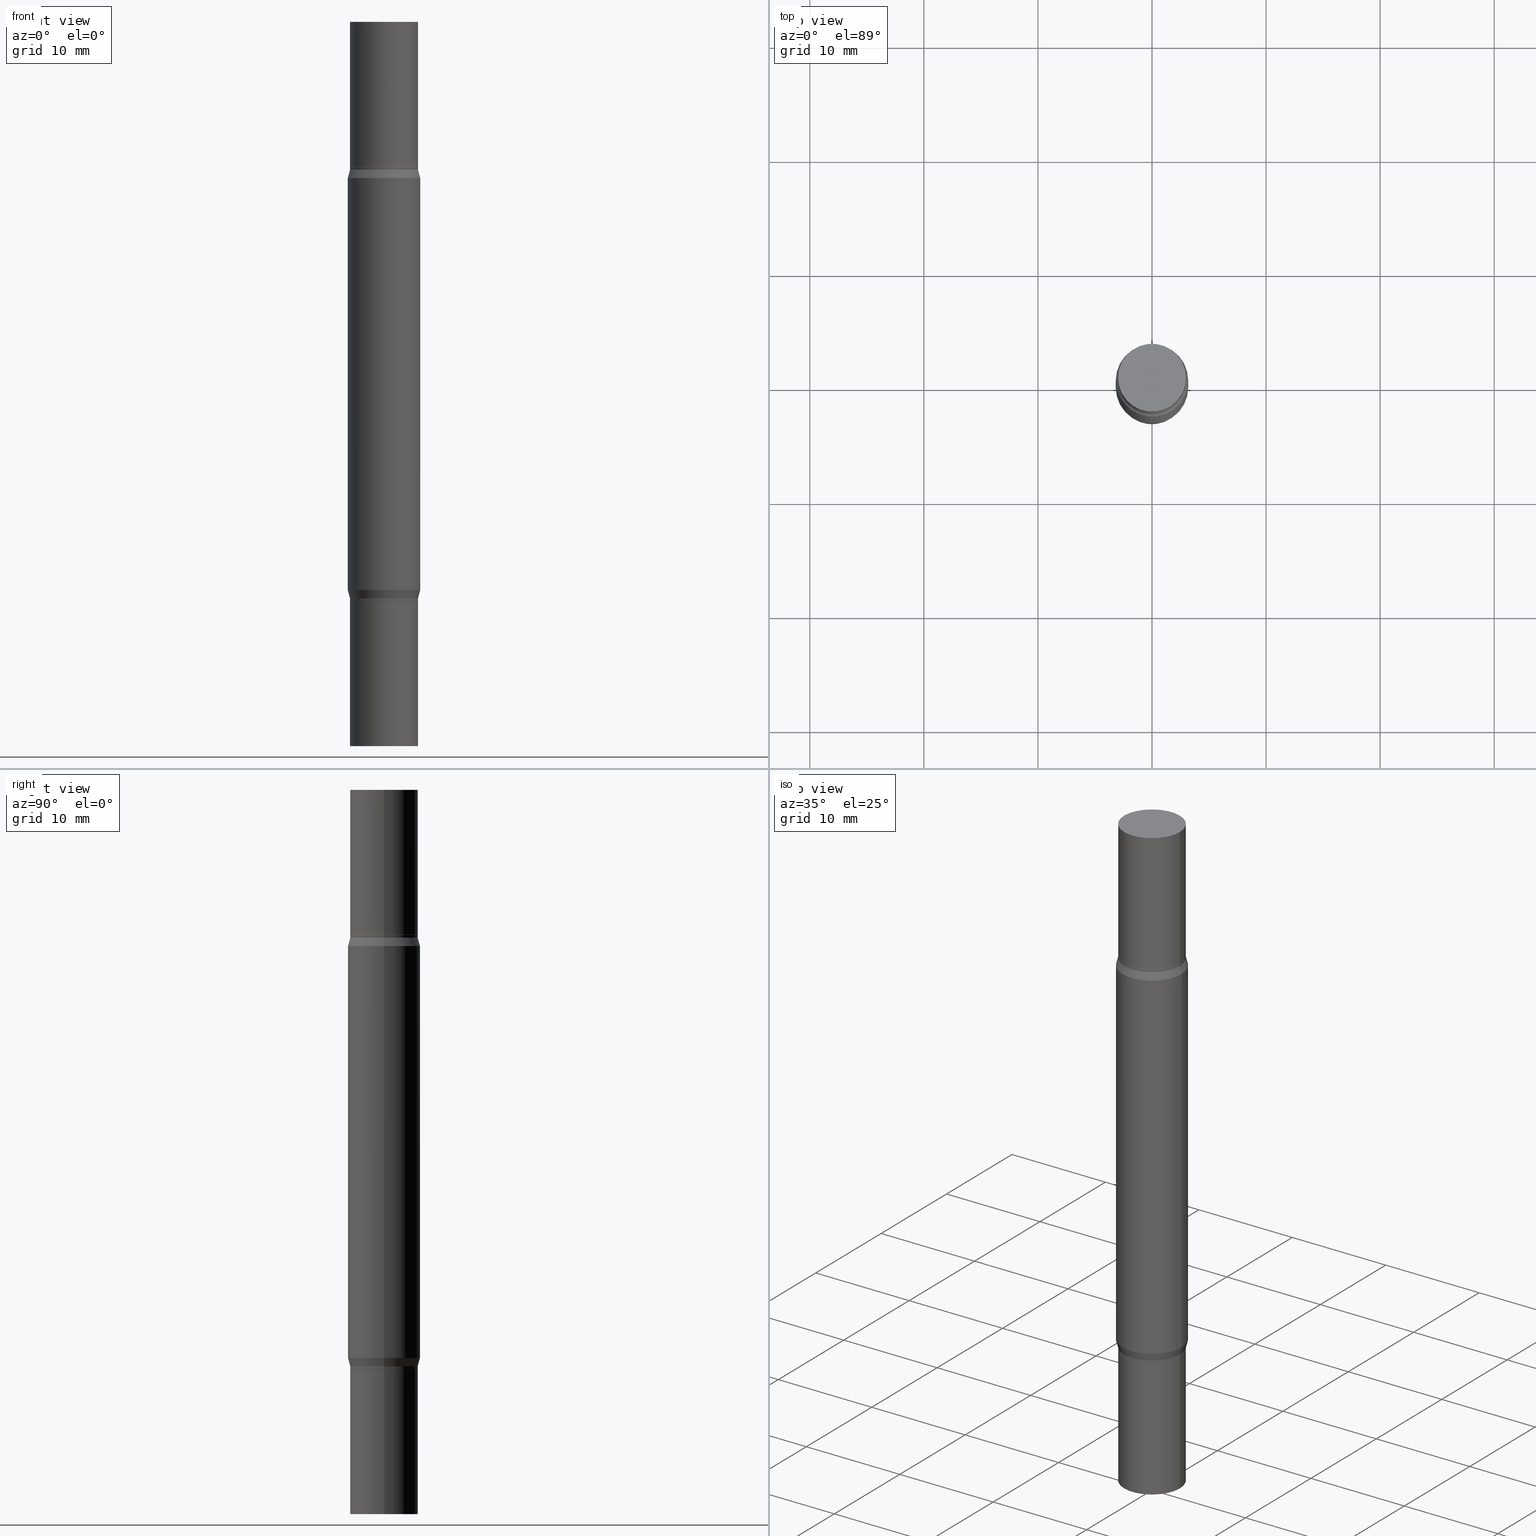
[diagram: canonical four-view strip — front | top / right | iso, engineering-drawing reading convention]
A machine part, canonical four-view strip (front | top / right | iso — engineering-drawing reading convention). The complete STEP part file that produces these views, byte-faithful:
ISO-10303-21;
HEADER;
FILE_DESCRIPTION (( 'STEP AP203' ),
    '1' );
FILE_NAME ('31329.STEP',
    '2024-03-04T15:59:17',
    ( '' ),
    ( '' ),
    'SwSTEP 2.0',
    'SolidWorks 2023',
    '' );
FILE_SCHEMA (( 'CONFIG_CONTROL_DESIGN' ));
ENDSEC;

DATA;
#1 = DIRECTION ( 'NONE',  ( -2.445468806185136877E-29, -3.491805094961123683E-15, -1.000000000000000000 ) ) ;
#2 = CARTESIAN_POINT ( 'NONE',  ( 4.890937612370273754E-29, -1.745497852333085568E-15, -0.4999999999999993339 ) ) ;
#3 = ORIENTED_EDGE ( 'NONE', *, *, #782, .F. ) ;
#4 = LINE ( 'NONE', #608, #175 ) ;
#5 = CARTESIAN_POINT ( 'NONE',  ( 6.113672015462842613E-29, 4.046951474745467748E-19, 5.463695987328526437E-16 ) ) ;
#6 = DIRECTION ( 'NONE',  ( -2.438088387897960049E-29, 3.491481338843145188E-15, 1.000000000000000000 ) ) ;
#7 = ADVANCED_FACE ( 'NONE', ( #385 ), #26, .T. ) ;
#8 = ORIENTED_EDGE ( 'NONE', *, *, #569, .F. ) ;
#9 = ADVANCED_FACE ( 'NONE', ( #450 ), #237, .T. ) ;
#10 = CLOSED_SHELL ( 'NONE', ( #977, #920, #801, #605, #469, #919, #7, #221, #358, #943, #40, #720, #648, #790, #31, #506 ) ) ;
#11 = PLANE ( 'NONE',  #429 ) ;
#12 = AXIS2_PLACEMENT_3D ( 'NONE', #769, #806, #732 ) ;
#13 = DIRECTION ( 'NONE',  ( -2.445468806185136597E-29, -3.491805094961124077E-15, -1.000000000000000000 ) ) ;
#14 = VECTOR ( 'NONE', #571, 39.37007874015748143 ) ;
#15 = ORIENTED_EDGE ( 'NONE', *, *, #615, .F. ) ;
#16 = LOCAL_TIME ( 10, 59, 17.00000000000000000, #198 ) ;
#17 = CALENDAR_DATE ( 2024, 4, 3 ) ;
#18 = DIRECTION ( 'NONE',  ( 1.000000000000000000, -6.982962677686266711E-15, 0.000000000000000000 ) ) ;
#19 = DIRECTION ( 'NONE',  ( -2.445468806185136597E-29, 3.491481338843145583E-15, 1.000000000000000000 ) ) ;
#20 = ADVANCED_FACE ( 'NONE', ( #746 ), #442, .T. ) ;
#21 = LINE ( 'NONE', #921, #774 ) ;
#22 = DIRECTION ( 'NONE',  ( 1.000000000000000000, -6.982962677686265922E-15, 0.000000000000000000 ) ) ;
#23 = ORIENTED_EDGE ( 'NONE', *, *, #718, .T. ) ;
#24 = PERSON_AND_ORGANIZATION ( #121, #369 ) ;
#25 = DIRECTION ( 'NONE',  ( 0.2588190451025205729, -5.180148453816002468E-15, -0.9659258262890684232 ) ) ;
#26 = CONICAL_SURFACE ( 'NONE', #585, 0.1166999999999999982, 0.7853981633974653764 ) ;
#27 = DIRECTION ( 'NONE',  ( 1.000000000000000000, -6.982962677686266711E-15, 0.000000000000000000 ) ) ;
#28 = AXIS2_PLACEMENT_3D ( 'NONE', #230, #529, #710 ) ;
#29 = ORIENTED_EDGE ( 'NONE', *, *, #624, .T. ) ;
#30 = CALENDAR_DATE ( 2024, 4, 3 ) ;
#31 = ADVANCED_FACE ( 'NONE', ( #233 ), #586, .T. ) ;
#32 = FACE_OUTER_BOUND ( 'NONE', #762, .T. ) ;
#33 = DIRECTION ( 'NONE',  ( -2.438088387897959208E-29, -3.491805094961123683E-15, -1.000000000000000000 ) ) ;
#34 = ORIENTED_EDGE ( 'NONE', *, *, #376, .T. ) ;
#35 = PERSON_AND_ORGANIZATION ( #121, #369 ) ;
#36 = DIRECTION ( 'NONE',  ( 1.000000000000000000, -6.982962677686265133E-15, 0.000000000000000000 ) ) ;
#37 = DIRECTION ( 'NONE',  ( -2.445468806185136597E-29, -3.491805094961124077E-15, -1.000000000000000000 ) ) ;
#38 = ORIENTED_EDGE ( 'NONE', *, *, #234, .F. ) ;
#39 = EDGE_CURVE ( 'NONE', #475, #184, #160, .T. ) ;
#40 = ADVANCED_FACE ( 'NONE', ( #305 ), #138, .T. ) ;
#41 = CYLINDRICAL_SURFACE ( 'NONE', #574, 0.1171999999999997766 ) ;
#43 = DIRECTION ( 'NONE',  ( -2.445468806185136597E-29, 3.491481338843145583E-15, 1.000000000000000000 ) ) ;
#42 = PRODUCT ( '31329', '31329', '', ( #712 ) ) ;
#44 = CIRCLE ( 'NONE', #837, 0.1166999999999999982 ) ;
#45 = VERTEX_POINT ( 'NONE', #82 ) ;
#46 = AXIS2_PLACEMENT_3D ( 'NONE', #694, #639, #468 ) ;
#47 = VECTOR ( 'NONE', #360, 39.37007874015748143 ) ;
#48 = FACE_OUTER_BOUND ( 'NONE', #974, .T. ) ;
#49 = CARTESIAN_POINT ( 'NONE',  ( 6.154967616791147274E-29, 5.954234664926997746E-17, 5.463695987328526437E-16 ) ) ;
#50 = ORIENTED_EDGE ( 'NONE', *, *, #262, .T. ) ;
#51 = LINE ( 'NONE', #730, #14 ) ;
#52 = EDGE_CURVE ( 'NONE', #464, #257, #654, .T. ) ;
#53 = CARTESIAN_POINT ( 'NONE',  ( -0.1171999999999997766, -7.925057676916513769E-15, -2.499999999999999556 ) ) ;
#54 = ORIENTED_EDGE ( 'NONE', *, *, #190, .F. ) ;
#55 = CYLINDRICAL_SURFACE ( 'NONE', #978, 0.1171999999999997766 ) ;
#56 = DIRECTION ( 'NONE',  ( 2.445468806185136597E-29, 3.491805094961124077E-15, 1.000000000000000000 ) ) ;
#57 = ORIENTED_EDGE ( 'NONE', *, *, #70, .T. ) ;
#58 = CIRCLE ( 'NONE', #195, 0.1250000000000000000 ) ;
#59 = AXIS2_PLACEMENT_3D ( 'NONE', #850, #335, #18 ) ;
#60 = CARTESIAN_POINT ( 'NONE',  ( -0.1171999999999999986, -6.849621325398205664E-17, -0.4999999999999993339 ) ) ;
#61 = AXIS2_PLACEMENT_3D ( 'NONE', #415, #877, #110 ) ;
#62 = CYLINDRICAL_SURFACE ( 'NONE', #704, 0.1171999999999999986 ) ;
#63 = ORIENTED_EDGE ( 'NONE', *, *, #747, .F. ) ;
#64 = ORIENTED_EDGE ( 'NONE', *, *, #448, .T. ) ;
#65 = DIRECTION ( 'NONE',  ( 1.000000000000000000, -6.982962677686265133E-15, 0.000000000000000000 ) ) ;
#66 = EDGE_LOOP ( 'NONE', ( #77, #64, #603, #580 ) ) ;
#67 = ORIENTED_EDGE ( 'NONE', *, *, #79, .F. ) ;
#68 = CARTESIAN_POINT ( 'NONE',  ( -0.1171999999999999154, -6.148460850706034029E-15, -1.999500000000000277 ) ) ;
#69 = VERTEX_POINT ( 'NONE', #679 ) ;
#70 = EDGE_CURVE ( 'NONE', #642, #97, #973, .T. ) ;
#71 = VERTEX_POINT ( 'NONE', #606 ) ;
#72 = CIRCLE ( 'NONE', #700, 0.1171999999999996239 ) ;
#73 = CIRCLE ( 'NONE', #212, 0.1250000000000000000 ) ;
#74 = CARTESIAN_POINT ( 'NONE',  ( 0.1171999999999996239, -7.766451090122687999E-15, -1.989999999999999991 ) ) ;
#75 = CC_DESIGN_APPROVAL ( #908, ( #886 ) ) ;
#76 = ORIENTED_EDGE ( 'NONE', *, *, #912, .T. ) ;
#77 = ORIENTED_EDGE ( 'NONE', *, *, #649, .F. ) ;
#78 = DIRECTION ( 'NONE',  ( -2.445468806185136597E-29, 3.491481338843145583E-15, 1.000000000000000000 ) ) ;
#79 = EDGE_CURVE ( 'NONE', #250, #856, #300, .T. ) ;
#80 = DIRECTION ( 'NONE',  ( 1.000000000000000000, -6.982962677686265133E-15, 0.000000000000000000 ) ) ;
#81 = EDGE_CURVE ( 'NONE', #856, #250, #72, .T. ) ;
#82 = CARTESIAN_POINT ( 'NONE',  ( -0.1166999999999999982, -9.440355627674452081E-16, -0.4999999999999993339 ) ) ;
#83 = ORIENTED_EDGE ( 'NONE', *, *, #890, .T. ) ;
#84 = CARTESIAN_POINT ( 'NONE',  ( -0.1171999999999999986, -6.849621325398194571E-17, 5.463695987328557991E-16 ) ) ;
#85 = CARTESIAN_POINT ( 'NONE',  ( 4.890937612370273754E-29, -1.745497852333085568E-15, -0.4999999999999993339 ) ) ;
#86 = CARTESIAN_POINT ( 'NONE',  ( 0.1171999999999999986, -2.563901078157915826E-15, -0.4999999999999993339 ) ) ;
#87 = ORIENTED_EDGE ( 'NONE', *, *, #561, .T. ) ;
#88 =( LENGTH_UNIT ( ) NAMED_UNIT ( * ) SI_UNIT ( $, .METRE. ) );
#89 = CIRCLE ( 'NONE', #898, 0.1171999999999999154 ) ;
#90 = DIRECTION ( 'NONE',  ( 2.445468806185136597E-29, 3.491805094961124077E-15, 1.000000000000000000 ) ) ;
#91 = APPROVAL ( #178, 'UNSPECIFIED' ) ;
#92 = DIRECTION ( 'NONE',  ( 0.7071067811865595631, -2.468850131082382884E-15, 0.7071067811865354713 ) ) ;
#93 = ORIENTED_EDGE ( 'NONE', *, *, #390, .F. ) ;
#94 = DATE_AND_TIME ( #487, #16 ) ;
#95 = FACE_OUTER_BOUND ( 'NONE', #727, .T. ) ;
#96 = DIRECTION ( 'NONE',  ( -2.445468806185136597E-29, -3.491805094961124077E-15, -1.000000000000000000 ) ) ;
#97 = VERTEX_POINT ( 'NONE', #86 ) ;
#98 = DIRECTION ( 'NONE',  ( 1.000000000000000000, 0.000000000000000000, 0.000000000000000000 ) ) ;
#99 = CARTESIAN_POINT ( 'NONE',  ( 4.866482924308422209E-29, -1.780415903282698911E-15, -0.5099999999999994538 ) ) ;
#100 = DIRECTION ( 'NONE',  ( -2.445468806185136597E-29, 3.491481338843145583E-15, 1.000000000000000000 ) ) ;
#101 = ORIENTED_EDGE ( 'NONE', *, *, #293, .T. ) ;
#102 =( NAMED_UNIT ( * ) PLANE_ANGLE_UNIT ( ) SI_UNIT ( $, .RADIAN. ) );
#103 = DIRECTION ( 'NONE',  ( 0.000000000000000000, 1.000000000000000000, -4.370956789862821150E-15 ) ) ;
#104 = ADVANCED_FACE ( 'NONE', ( #404 ), #623, .T. ) ;
#105 = DIRECTION ( 'NONE',  ( 2.445468806185136597E-29, 3.491805094961124077E-15, 1.000000000000000000 ) ) ;
#106 = VECTOR ( 'NONE', #496, 39.37007874015748143 ) ;
#107 = VECTOR ( 'NONE', #290, 39.37007874015748143 ) ;
#108 = EDGE_LOOP ( 'NONE', ( #455, #15, #831, #23 ) ) ;
#109 = APPROVAL_ROLE ( '' ) ;
#110 = DIRECTION ( 'NONE',  ( 1.000000000000000000, -6.982962677686267499E-15, 0.000000000000000000 ) ) ;
#111 = EDGE_CURVE ( 'NONE', #184, #367, #914, .T. ) ;
#112 = LINE ( 'NONE', #661, #316 ) ;
#113 = ADVANCED_FACE ( 'NONE', ( #176 ), #948, .T. ) ;
#114 = EDGE_LOOP ( 'NONE', ( #459, #419, #969, #34 ) ) ;
#115 = APPLICATION_PROTOCOL_DEFINITION ( 'international standard', 'config_control_design', 1994, #359 ) ;
#116 = DIRECTION ( 'NONE',  ( -0.2588190451025205729, -1.597197180879720243E-15, -0.9659258262890684232 ) ) ;
#117 = EDGE_CURVE ( 'NONE', #97, #144, #552, .T. ) ;
#118 = DIRECTION ( 'NONE',  ( 1.000000000000000000, -6.982962677686267499E-15, 0.000000000000000000 ) ) ;
#119 = ORIENTED_EDGE ( 'NONE', *, *, #228, .T. ) ;
#120 = DIRECTION ( 'NONE',  ( 2.438088387897959208E-29, 3.491805094961123683E-15, 1.000000000000000000 ) ) ;
#121 = PERSON ( 'UNSPECIFIED', 'UNSPECIFIED', 'UNSPECIFIED', ('UNSPECIFIED'), ('UNSPECIFIED'), ('UNSPECIFIED') ) ;
#122 = FACE_OUTER_BOUND ( 'NONE', #659, .T. ) ;
#123 = CLOSED_SHELL ( 'NONE', ( #9, #166, #820, #757 ) ) ;
#124 = AXIS2_PLACEMENT_3D ( 'NONE', #860, #181, #617 ) ;
#125 = ORIENTED_EDGE ( 'NONE', *, *, #223, .F. ) ;
#126 = VECTOR ( 'NONE', #778, 39.37007874015748143 ) ;
#127 = EDGE_CURVE ( 'NONE', #211, #829, #44, .T. ) ;
#128 = CARTESIAN_POINT ( 'NONE',  ( -0.1166999999999999982, -9.440355627674452081E-16, -0.4999999999999993339 ) ) ;
#129 = CYLINDRICAL_SURFACE ( 'NONE', #508, 0.1250000000000000000 ) ;
#130 = ORIENTED_EDGE ( 'NONE', *, *, #52, .F. ) ;
#131 = DIRECTION ( 'NONE',  ( 2.445468806185136597E-29, 3.491805094961124077E-15, 1.000000000000000000 ) ) ;
#132 = EDGE_CURVE ( 'NONE', #347, #310, #640, .T. ) ;
#133 = DIRECTION ( 'NONE',  ( -1.000000000000000000, 6.982962677686265922E-15, -4.876176775795935793E-29 ) ) ;
#134 = ORIENTED_EDGE ( 'NONE', *, *, #889, .T. ) ;
#135 = DIRECTION ( 'NONE',  ( 1.000000000000000000, -6.982962677686266711E-15, 0.000000000000000000 ) ) ;
#136 = DIRECTION ( 'NONE',  ( 1.000000000000000000, -6.982962677686266711E-15, 0.000000000000000000 ) ) ;
#137 = EDGE_LOOP ( 'NONE', ( #923, #949, #76, #953 ) ) ;
#138 = CONICAL_SURFACE ( 'NONE', #458, 0.1171999999999996239, 0.2617993877991492413 ) ;
#139 = ORIENTED_EDGE ( 'NONE', *, *, #512, .T. ) ;
#140 = CIRCLE ( 'NONE', #172, 0.1166999999999999982 ) ;
#141 = CIRCLE ( 'NONE', #416, 0.1171999999999999986 ) ;
#142 = AXIS2_PLACEMENT_3D ( 'NONE', #906, #466, #235 ) ;
#143 = DIRECTION ( 'NONE',  ( -2.445468806185136597E-29, -3.491805094961124077E-15, -1.000000000000000000 ) ) ;
#144 = VERTEX_POINT ( 'NONE', #632 ) ;
#145 = ORIENTED_EDGE ( 'NONE', *, *, #205, .F. ) ;
#146 = CARTESIAN_POINT ( 'NONE',  ( 0.000000000000000000, -8.729108042255335103E-15, -2.499999999999999556 ) ) ;
#147 = ORIENTED_EDGE ( 'NONE', *, *, #111, .F. ) ;
#148 = EDGE_LOOP ( 'NONE', ( #882, #677, #134, #686 ) ) ;
#149 = CARTESIAN_POINT ( 'NONE',  ( 4.866482924308422209E-29, -1.780415903282698911E-15, -0.5099999999999994538 ) ) ;
#150 = DIRECTION ( 'NONE',  ( 1.000000000000000000, -6.982962677686265133E-15, 0.000000000000000000 ) ) ;
#151 = ORIENTED_EDGE ( 'NONE', *, *, #286, .T. ) ;
#152 = LINE ( 'NONE', #835, #964 ) ;
#153 = EDGE_CURVE ( 'NONE', #184, #736, #848, .T. ) ;
#154 = AXIS2_PLACEMENT_3D ( 'NONE', #526, #524, #979 ) ;
#155 = EDGE_CURVE ( 'NONE', #642, #980, #794, .T. ) ;
#156 = AXIS2_PLACEMENT_3D ( 'NONE', #167, #540, #859 ) ;
#157 = DIRECTION ( 'NONE',  ( -2.445468806185136597E-29, -3.491805094961124077E-15, -1.000000000000000000 ) ) ;
#158 = VECTOR ( 'NONE', #116, 39.37007874015748143 ) ;
#159 = CC_DESIGN_APPROVAL ( #91, ( #873 ) ) ;
#160 = LINE ( 'NONE', #309, #759 ) ;
#161 = FACE_OUTER_BOUND ( 'NONE', #377, .T. ) ;
#162 = DIRECTION ( 'NONE',  ( 1.000000000000000000, -6.982962677686266711E-15, 0.000000000000000000 ) ) ;
#163 = CARTESIAN_POINT ( 'NONE',  ( 0.1166999999999999982, -2.560409596819072819E-15, -0.4999999999999993339 ) ) ;
#164 = EDGE_LOOP ( 'NONE', ( #409, #966, #471, #681 ) ) ;
#165 = LINE ( 'NONE', #817, #671 ) ;
#166 = ADVANCED_FACE ( 'NONE', ( #326 ), #865, .F. ) ;
#167 = CARTESIAN_POINT ( 'NONE',  ( 4.890937612370273754E-29, -1.745497852333085568E-15, -0.4999999999999993339 ) ) ;
#168 = EDGE_CURVE ( 'NONE', #879, #502, #400, .T. ) ;
#169 = DIRECTION ( 'NONE',  ( -0.2588190451025205729, 5.211531920934545520E-15, 0.9659258262890684232 ) ) ;
#170 = EDGE_LOOP ( 'NONE', ( #177, #813 ) ) ;
#171 = DATE_AND_TIME ( #30, #383 ) ;
#172 = AXIS2_PLACEMENT_3D ( 'NONE', #719, #194, #342 ) ;
#173 = DIRECTION ( 'NONE',  ( -2.445468806185136597E-29, -3.491805094961124077E-15, -1.000000000000000000 ) ) ;
#174 = CIRCLE ( 'NONE', #701, 0.1171999999999999986 ) ;
#175 = VECTOR ( 'NONE', #763, 39.37007874015748143 ) ;
#176 = FACE_OUTER_BOUND ( 'NONE', #266, .T. ) ;
#177 = ORIENTED_EDGE ( 'NONE', *, *, #127, .T. ) ;
#178 = APPROVAL_STATUS ( 'not_yet_approved' ) ;
#179 = ADVANCED_FACE ( 'NONE', ( #628 ), #925, .F. ) ;
#180 = DIRECTION ( 'NONE',  ( 2.445468806185136597E-29, 3.491805094961124077E-15, 1.000000000000000000 ) ) ;
#181 = DIRECTION ( 'NONE',  ( -2.445468806185136597E-29, 3.491481338843145583E-15, 1.000000000000000000 ) ) ;
#182 = UNCERTAINTY_MEASURE_WITH_UNIT (LENGTH_MEASURE( 1.000000000000000082E-05 ), #862, 'distance_accuracy_value', 'NONE');
#183 = DIMENSIONAL_EXPONENTS ( 1.000000000000000000, 0.000000000000000000, 0.000000000000000000, 0.000000000000000000, 0.000000000000000000, 0.000000000000000000, 0.000000000000000000 ) ;
#184 = VERTEX_POINT ( 'NONE', #242 ) ;
#185 = APPROVAL_ROLE ( '' ) ;
#186 = FACE_OUTER_BOUND ( 'NONE', #397, .T. ) ;
#187 = DIRECTION ( 'NONE',  ( 1.000000000000000000, -6.982962677686267499E-15, 0.000000000000000000 ) ) ;
#188 = ORIENTED_EDGE ( 'NONE', *, *, #959, .F. ) ;
#189 = COORDINATED_UNIVERSAL_TIME_OFFSET ( 5, 0, .BEHIND. ) ;
#190 = EDGE_CURVE ( 'NONE', #310, #367, #408, .T. ) ;
#191 = CARTESIAN_POINT ( 'NONE',  ( 0.1171999999999997766, -9.547511268080164375E-15, -2.499999999999999556 ) ) ;
#192 = EDGE_CURVE ( 'NONE', #829, #910, #556, .T. ) ;
#193 = CLOSED_SHELL ( 'NONE', ( #439, #20, #104, #467, #410, #653, #113, #572, #745, #337 ) ) ;
#194 = DIRECTION ( 'NONE',  ( -2.445468806185136597E-29, 3.491481338843145583E-15, 1.000000000000000000 ) ) ;
#195 = AXIS2_PLACEMENT_3D ( 'NONE', #504, #43, #434 ) ;
#196 = CIRCLE ( 'NONE', #156, 0.1171999999999999986 ) ;
#197 = EDGE_LOOP ( 'NONE', ( #67, #702, #87, #452 ) ) ;
#198 = COORDINATED_UNIVERSAL_TIME_OFFSET ( 5, 0, .BEHIND. ) ;
#199 = AXIS2_PLACEMENT_3D ( 'NONE', #472, #963, #673 ) ;
#200 = LINE ( 'NONE', #499, #158 ) ;
#201 = DIRECTION ( 'NONE',  ( -0.7071067811865595631, 2.382025595312359119E-15, -0.7071067811865354713 ) ) ;
#202 = ORIENTED_EDGE ( 'NONE', *, *, #448, .F. ) ;
#203 = CARTESIAN_POINT ( 'NONE',  ( 4.890937612370273754E-29, -6.982962677686291954E-15, -2.000000000000000444 ) ) ;
#204 = CARTESIAN_POINT ( 'NONE',  ( -0.1166999999999999982, -6.151110077880143652E-15, -2.000000000000000444 ) ) ;
#205 = EDGE_CURVE ( 'NONE', #756, #596, #492, .T. ) ;
#206 = VERTEX_POINT ( 'NONE', #485 ) ;
#207 = MANIFOLD_SOLID_BREP ( 'Mirror1[3]', #740 ) ;
#208 = CARTESIAN_POINT ( 'NONE',  ( 0.1250000000000000000, -9.601978376966118441E-15, -2.499999999999999556 ) ) ;
#209 = DIRECTION ( 'NONE',  ( -0.2588190451025205729, -1.597197180879720243E-15, -0.9659258262890684232 ) ) ;
#210 = AXIS2_PLACEMENT_3D ( 'NONE', #887, #875, #118 ) ;
#211 = VERTEX_POINT ( 'NONE', #163 ) ;
#212 = AXIS2_PLACEMENT_3D ( 'NONE', #421, #578, #722 ) ;
#213 =( GEOMETRIC_REPRESENTATION_CONTEXT ( 3 ) GLOBAL_UNCERTAINTY_ASSIGNED_CONTEXT ( ( #182 ) ) GLOBAL_UNIT_ASSIGNED_CONTEXT ( ( #862, #102, #261 ) ) REPRESENTATION_CONTEXT ( 'NONE', 'WORKASPACE' ) );
#214 = DIRECTION ( 'NONE',  ( 1.000000000000000000, -6.982962677686266711E-15, 0.000000000000000000 ) ) ;
#215 = CARTESIAN_POINT ( 'NONE',  ( 0.1166999999999999982, -2.560409596819072819E-15, -0.4999999999999993339 ) ) ;
#216 = ORIENTED_EDGE ( 'NONE', *, *, #889, .F. ) ;
#217 = EDGE_CURVE ( 'NONE', #475, #310, #414, .T. ) ;
#218 = DIRECTION ( 'NONE',  ( -1.000000000000000000, 6.982962677686265922E-15, -2.260776888683160832E-33 ) ) ;
#219 = CARTESIAN_POINT ( 'NONE',  ( -0.1171999999999999986, -7.925057676916510614E-15, -2.499999999999999556 ) ) ;
#220 = CARTESIAN_POINT ( 'NONE',  ( 0.000000000000000000, -8.729108042255335103E-15, -2.499999999999999556 ) ) ;
#221 = ADVANCED_FACE ( 'NONE', ( #937 ), #489, .F. ) ;
#222 = FACE_OUTER_BOUND ( 'NONE', #148, .T. ) ;
#223 = EDGE_CURVE ( 'NONE', #45, #273, #579, .T. ) ;
#224 = DIRECTION ( 'NONE',  ( 1.000000000000000000, -6.982962677686265133E-15, 0.000000000000000000 ) ) ;
#225 = AXIS2_PLACEMENT_3D ( 'NONE', #695, #13, #27 ) ;
#226 = ORIENTED_EDGE ( 'NONE', *, *, #612, .F. ) ;
#227 = AXIS2_PLACEMENT_3D ( 'NONE', #954, #279, #581 ) ;
#228 = EDGE_CURVE ( 'NONE', #440, #736, #58, .T. ) ;
#229 = FACE_OUTER_BOUND ( 'NONE', #903, .T. ) ;
#230 = CARTESIAN_POINT ( 'NONE',  ( 4.866482924308422209E-29, -1.780415903282698911E-15, -0.5099999999999994538 ) ) ;
#231 = ORIENTED_EDGE ( 'NONE', *, *, #818, .F. ) ;
#232 = CYLINDRICAL_SURFACE ( 'NONE', #838, 0.1171999999999999986 ) ;
#233 = FACE_OUTER_BOUND ( 'NONE', #164, .T. ) ;
#234 = EDGE_CURVE ( 'NONE', #144, #97, #962, .T. ) ;
#235 = DIRECTION ( 'NONE',  ( 1.000000000000000000, -6.982962677686267499E-15, 0.000000000000000000 ) ) ;
#236 = DIRECTION ( 'NONE',  ( -2.445468806185136597E-29, 3.491481338843145583E-15, 1.000000000000000000 ) ) ;
#237 = CYLINDRICAL_SURFACE ( 'NONE', #682, 0.1171999999999999986 ) ;
#238 = CARTESIAN_POINT ( 'NONE',  ( -0.1171999999999999154, -9.431933895417428408E-16, -0.5004999999999991678 ) ) ;
#239 = VECTOR ( 'NONE', #902, 39.37007874015748143 ) ;
#240 = AXIS2_PLACEMENT_3D ( 'NONE', #610, #768, #836 ) ;
#241 = DIRECTION ( 'NONE',  ( 2.445468806185136597E-29, 3.491805094961124077E-15, 1.000000000000000000 ) ) ;
#242 = CARTESIAN_POINT ( 'NONE',  ( -0.1171999999999996239, -6.131876314346530928E-15, -1.989999999999999991 ) ) ;
#243 = DIRECTION ( 'NONE',  ( 1.000000000000000000, -6.982962677686266711E-15, 0.000000000000000000 ) ) ;
#244 = CYLINDRICAL_SURFACE ( 'NONE', #336, 0.1171999999999997766 ) ;
#245 = CARTESIAN_POINT ( 'NONE',  ( 6.113672015462842613E-29, 4.046951474745467748E-19, 5.463695987328526437E-16 ) ) ;
#246 = ORIENTED_EDGE ( 'NONE', *, *, #818, .T. ) ;
#247 = APPROVAL_STATUS ( 'not_yet_approved' ) ;
#248 = CARTESIAN_POINT ( 'NONE',  ( 0.000000000000000000, -8.729108042255335103E-15, -2.499999999999999556 ) ) ;
#249 = DIRECTION ( 'NONE',  ( 1.000000000000000000, -6.982962677686265922E-15, 4.876176775795935793E-29 ) ) ;
#250 = VERTEX_POINT ( 'NONE', #723 ) ;
#251 = PERSON_AND_ORGANIZATION ( #121, #369 ) ;
#252 = AXIS2_PLACEMENT_3D ( 'NONE', #283, #265, #428 ) ;
#253 = DIRECTION ( 'NONE',  ( -0.7071067811865595631, 7.493145998870398336E-15, 0.7071067811865354713 ) ) ;
#254 = AXIS2_PLACEMENT_3D ( 'NONE', #85, #631, #258 ) ;
#255 = DIRECTION ( 'NONE',  ( 1.000000000000000000, -6.982962677686265922E-15, 2.260776888683160832E-33 ) ) ;
#256 = ADVANCED_FACE ( 'NONE', ( #122 ), #869, .F. ) ;
#257 = VERTEX_POINT ( 'NONE', #798 ) ;
#258 = DIRECTION ( 'NONE',  ( 1.000000000000000000, -6.982962677686265133E-15, 0.000000000000000000 ) ) ;
#259 = CARTESIAN_POINT ( 'NONE',  ( 4.866482924308422209E-29, -1.780415903282698911E-15, -0.5099999999999994538 ) ) ;
#260 = ORIENTED_EDGE ( 'NONE', *, *, #153, .T. ) ;
#261 =( NAMED_UNIT ( * ) SI_UNIT ( $, .STERADIAN. ) SOLID_ANGLE_UNIT ( ) );
#262 = EDGE_CURVE ( 'NONE', #832, #876, #808, .T. ) ;
#263 = EDGE_CURVE ( 'NONE', #910, #250, #878, .T. ) ;
#264 = DIRECTION ( 'NONE',  ( 1.000000000000000000, -6.982962677686266711E-15, 0.000000000000000000 ) ) ;
#265 = DIRECTION ( 'NONE',  ( 2.445468806185136597E-29, 3.491805094961124077E-15, 1.000000000000000000 ) ) ;
#266 = EDGE_LOOP ( 'NONE', ( #125, #188, #83, #413 ) ) ;
#267 = DIRECTION ( 'NONE',  ( 1.000000000000000000, -6.982962677686261977E-15, 0.000000000000000000 ) ) ;
#268 = APPLICATION_CONTEXT ( 'configuration controlled 3d designs of mechanical parts and assemblies' ) ;
#269 = AXIS2_PLACEMENT_3D ( 'NONE', #313, #930, #255 ) ;
#270 = FACE_OUTER_BOUND ( 'NONE', #114, .T. ) ;
#271 = AXIS2_PLACEMENT_3D ( 'NONE', #384, #56, #136 ) ;
#272 = AXIS2_PLACEMENT_3D ( 'NONE', #501, #881, #658 ) ;
#273 = VERTEX_POINT ( 'NONE', #815 ) ;
#274 = LOCAL_TIME ( 10, 59, 17.00000000000000000, #563 ) ;
#275 = CC_DESIGN_PERSON_AND_ORGANIZATION_ASSIGNMENT ( #945, #793, ( #886 ) ) ;
#276 = DIRECTION ( 'NONE',  ( 2.445468806185136597E-29, 3.491805094961124077E-15, 1.000000000000000000 ) ) ;
#277 = CARTESIAN_POINT ( 'NONE',  ( 6.113672015462842613E-29, -8.728703347107864943E-15, -2.500000000000000000 ) ) ;
#278 = ORIENTED_EDGE ( 'NONE', *, *, #292, .F. ) ;
#279 = DIRECTION ( 'NONE',  ( -2.445468806185136597E-29, 3.491481338843145583E-15, 1.000000000000000000 ) ) ;
#280 = DIRECTION ( 'NONE',  ( 2.445468806185136597E-29, 3.491805094961124077E-15, 1.000000000000000000 ) ) ;
#281 = EDGE_LOOP ( 'NONE', ( #696, #844, #534, #866 ) ) ;
#282 = CYLINDRICAL_SURFACE ( 'NONE', #901, 0.1171999999999997766 ) ;
#283 = CARTESIAN_POINT ( 'NONE',  ( 4.890937612370273754E-29, -1.745497852333085568E-15, -0.4999999999999993339 ) ) ;
#284 = AXIS2_PLACEMENT_3D ( 'NONE', #791, #706, #22 ) ;
#285 = ORIENTED_EDGE ( 'NONE', *, *, #747, .T. ) ;
#286 = EDGE_CURVE ( 'NONE', #879, #593, #664, .T. ) ;
#287 = AXIS2_PLACEMENT_3D ( 'NONE', #743, #907, #298 ) ;
#288 = CIRCLE ( 'NONE', #462, 0.1250000000000000000 ) ;
#289 = FACE_OUTER_BOUND ( 'NONE', #619, .T. ) ;
#290 = DIRECTION ( 'NONE',  ( -2.445468806185136877E-29, -3.491805094961123683E-15, -1.000000000000000000 ) ) ;
#291 = ORIENTED_EDGE ( 'NONE', *, *, #959, .T. ) ;
#292 = EDGE_CURVE ( 'NONE', #310, #475, #89, .T. ) ;
#293 = EDGE_CURVE ( 'NONE', #273, #879, #112, .T. ) ;
#294 = PLANE ( 'NONE',  #824 ) ;
#295 = EDGE_LOOP ( 'NONE', ( #724, #739 ) ) ;
#296 = CC_DESIGN_DATE_AND_TIME_ASSIGNMENT ( #871, #776, ( #873 ) ) ;
#297 = VERTEX_POINT ( 'NONE', #204 ) ;
#298 = DIRECTION ( 'NONE',  ( 1.000000000000000000, -6.982962677686270655E-15, 0.000000000000000000 ) ) ;
#299 = CARTESIAN_POINT ( 'NONE',  ( 0.1171999999999999986, -9.547511268080165952E-15, -2.499999999999999556 ) ) ;
#300 = CIRCLE ( 'NONE', #28, 0.1171999999999996239 ) ;
#301 = AXIS2_PLACEMENT_3D ( 'NONE', #531, #972, #833 ) ;
#302 = VECTOR ( 'NONE', #559, 39.37007874015748143 ) ;
#303 = ADVANCED_FACE ( 'NONE', ( #958 ), #361, .T. ) ;
#304 = DIRECTION ( 'NONE',  ( 1.000000000000000000, -6.982962677686269866E-15, 0.000000000000000000 ) ) ;
#305 = FACE_OUTER_BOUND ( 'NONE', #137, .T. ) ;
#306 = ORIENTED_EDGE ( 'NONE', *, *, #846, .F. ) ;
#307 = FACE_OUTER_BOUND ( 'NONE', #870, .T. ) ;
#308 = DIRECTION ( 'NONE',  ( -2.445468806185136597E-29, -3.491805094961124077E-15, -1.000000000000000000 ) ) ;
#309 = CARTESIAN_POINT ( 'NONE',  ( -0.1171999999999997766, 8.327560863108358303E-16, -5.764991925778737911E-30 ) ) ;
#310 = VERTEX_POINT ( 'NONE', #422 ) ;
#311 = DIRECTION ( 'NONE',  ( 1.000000000000000000, -6.982962677686266711E-15, 0.000000000000000000 ) ) ;
#312 = CARTESIAN_POINT ( 'NONE',  ( 4.795295336410958635E-29, -1.882062336673981410E-15, -0.5391099962990381078 ) ) ;
#313 = CARTESIAN_POINT ( 'NONE',  ( 6.154967616791147274E-29, 5.954234664926997746E-17, 5.463695987328526437E-16 ) ) ;
#314 = ORIENTED_EDGE ( 'NONE', *, *, #500, .F. ) ;
#315 = CARTESIAN_POINT ( 'NONE',  ( 6.113672015462842613E-29, 4.046951474745467748E-19, 5.463695987328526437E-16 ) ) ;
#316 = VECTOR ( 'NONE', #575, 39.37007874015748143 ) ;
#317 = AXIS2_PLACEMENT_3D ( 'NONE', #99, #913, #764 ) ;
#318 = LINE ( 'NONE', #709, #854 ) ;
#319 = APPROVAL_PERSON_ORGANIZATION ( #934, #908, #185 ) ;
#320 = CC_DESIGN_SECURITY_CLASSIFICATION ( #873, ( #886 ) ) ;
#321 = DIRECTION ( 'NONE',  ( 2.445468806185136597E-29, 3.491805094961124077E-15, 1.000000000000000000 ) ) ;
#322 = ORIENTED_EDGE ( 'NONE', *, *, #234, .T. ) ;
#323 = PERSON_AND_ORGANIZATION ( #121, #369 ) ;
#324 = EDGE_CURVE ( 'NONE', #211, #590, #515, .T. ) ;
#325 = DIRECTION ( 'NONE',  ( -2.438088387897959208E-29, -3.491805094961123683E-15, -1.000000000000000000 ) ) ;
#326 = FACE_OUTER_BOUND ( 'NONE', #550, .T. ) ;
#327 = ORIENTED_EDGE ( 'NONE', *, *, #262, .F. ) ;
#328 = DATE_AND_TIME ( #634, #917 ) ;
#329 = DIRECTION ( 'NONE',  ( 1.000000000000000000, -6.982962677686266711E-15, 0.000000000000000000 ) ) ;
#330 = EDGE_CURVE ( 'NONE', #297, #347, #140, .T. ) ;
#331 = DIRECTION ( 'NONE',  ( 2.445468806185136597E-29, 3.491805094961124077E-15, 1.000000000000000000 ) ) ;
#332 = ORIENTED_EDGE ( 'NONE', *, *, #155, .T. ) ;
#333 = COORDINATED_UNIVERSAL_TIME_OFFSET ( 5, 0, .BEHIND. ) ;
#334 = AXIS2_PLACEMENT_3D ( 'NONE', #952, #280, #947 ) ;
#335 = DIRECTION ( 'NONE',  ( 2.445468806185136597E-29, 3.491805094961124077E-15, 1.000000000000000000 ) ) ;
#336 = AXIS2_PLACEMENT_3D ( 'NONE', #248, #173, #329 ) ;
#337 = ADVANCED_FACE ( 'NONE', ( #645 ), #129, .T. ) ;
#338 = CIRCLE ( 'NONE', #621, 0.1166999999999999982 ) ;
#339 = CARTESIAN_POINT ( 'NONE',  ( 4.866482924308422209E-29, -6.948047864297860305E-15, -1.989999999999999991 ) ) ;
#340 = ORIENTED_EDGE ( 'NONE', *, *, #168, .F. ) ;
#341 = CARTESIAN_POINT ( 'NONE',  ( 0.1171999999999999986, -2.563901078157915826E-15, -0.4999999999999993339 ) ) ;
#342 = DIRECTION ( 'NONE',  ( 1.000000000000000000, -6.982962677686265133E-15, 0.000000000000000000 ) ) ;
#343 = ORIENTED_EDGE ( 'NONE', *, *, #39, .T. ) ;
#344 = DIRECTION ( 'NONE',  ( -2.445468806185136597E-29, -3.491805094961124077E-15, -1.000000000000000000 ) ) ;
#345 = DIRECTION ( 'NONE',  ( 0.000000000000000000, 1.000000000000000000, -4.370956789862821150E-15 ) ) ;
#346 = EDGE_CURVE ( 'NONE', #367, #184, #635, .T. ) ;
#347 = VERTEX_POINT ( 'NONE', #955 ) ;
#348 = DIRECTION ( 'NONE',  ( -2.445468806185136597E-29, 3.491481338843145583E-15, 1.000000000000000000 ) ) ;
#349 = AXIS2_PLACEMENT_3D ( 'NONE', #470, #100, #412 ) ;
#350 = DIRECTION ( 'NONE',  ( -0.000000000000000000, -3.491643216902134830E-15, -1.000000000000000000 ) ) ;
#351 = AXIS2_PLACEMENT_3D ( 'NONE', #656, #120, #427 ) ;
#352 = EDGE_LOOP ( 'NONE', ( #839, #50 ) ) ;
#353 = APPROVAL_PERSON_ORGANIZATION ( #867, #91, #857 ) ;
#354 = DIRECTION ( 'NONE',  ( 1.000000000000000000, -6.982962677686266711E-15, 4.876176775795935232E-29 ) ) ;
#355 = EDGE_CURVE ( 'NONE', #926, #849, #931, .T. ) ;
#356 = CARTESIAN_POINT ( 'NONE',  ( -0.1171999999999996239, -9.763655379438779721E-16, -0.5099999999999994538 ) ) ;
#357 = EDGE_LOOP ( 'NONE', ( #909, #888, #392, #147 ) ) ;
#358 = ADVANCED_FACE ( 'NONE', ( #270 ), #536, .T. ) ;
#359 = APPLICATION_CONTEXT ( 'configuration controlled 3d designs of mechanical parts and assemblies' ) ;
#360 = DIRECTION ( 'NONE',  ( -2.445468806185136877E-29, -3.491805094961123683E-15, -1.000000000000000000 ) ) ;
#361 = CYLINDRICAL_SURFACE ( 'NONE', #380, 0.1171999999999999986 ) ;
#362 = ORIENTED_EDGE ( 'NONE', *, *, #718, .F. ) ;
#363 = DIRECTION ( 'NONE',  ( 2.445468806185136597E-29, 3.491805094961124077E-15, 1.000000000000000000 ) ) ;
#364 = CARTESIAN_POINT ( 'NONE',  ( 0.1250000000000000000, -9.601978376966118441E-15, -2.499999999999999556 ) ) ;
#365 = EDGE_CURVE ( 'NONE', #206, #71, #174, .T. ) ;
#366 = VECTOR ( 'NONE', #714, 39.37007874015748143 ) ;
#367 = VERTEX_POINT ( 'NONE', #74 ) ;
#368 = EDGE_CURVE ( 'NONE', #69, #273, #685, .T. ) ;
#369 = ORGANIZATION ( 'UNSPECIFIED', 'UNSPECIFIED', '' ) ;
#370 = DIRECTION ( 'NONE',  ( -2.445468806185136877E-29, -3.491805094961123683E-15, -1.000000000000000000 ) ) ;
#371 = CYLINDRICAL_SURFACE ( 'NONE', #950, 0.1250000000000000000 ) ;
#372 = DIRECTION ( 'NONE',  ( -2.445468806185136597E-29, -3.491805094961124077E-15, -1.000000000000000000 ) ) ;
#373 = ORIENTED_EDGE ( 'NONE', *, *, #676, .F. ) ;
#374 = LINE ( 'NONE', #528, #600 ) ;
#375 = DIRECTION ( 'NONE',  ( 1.000000000000000000, -6.982962677686266711E-15, 0.000000000000000000 ) ) ;
#376 = EDGE_CURVE ( 'NONE', #590, #910, #461, .T. ) ;
#377 = EDGE_LOOP ( 'NONE', ( #8, #807, #775, #145 ) ) ;
#378 = DIRECTION ( 'NONE',  ( 0.2588190451025205729, 1.565188264969628081E-15, 0.9659258262890684232 ) ) ;
#379 = DIRECTION ( 'NONE',  ( -2.445468806185136597E-29, -3.491805094961124077E-15, -1.000000000000000000 ) ) ;
#380 = AXIS2_PLACEMENT_3D ( 'NONE', #509, #37, #418 ) ;
#381 = ORIENTED_EDGE ( 'NONE', *, *, #346, .T. ) ;
#382 = AXIS2_PLACEMENT_3D ( 'NONE', #622, #90, #80 ) ;
#383 = LOCAL_TIME ( 10, 59, 17.00000000000000000, #189 ) ;
#384 = CARTESIAN_POINT ( 'NONE',  ( 4.889714877967180953E-29, -1.747243754880567132E-15, -0.5004999999999991678 ) ) ;
#385 = FACE_OUTER_BOUND ( 'NONE', #426, .T. ) ;
#386 = EDGE_LOOP ( 'NONE', ( #373, #542, #322, #431 ) ) ;
#387 = FACE_OUTER_BOUND ( 'NONE', #597, .T. ) ;
#388 = APPROVAL ( #247, 'UNSPECIFIED' ) ;
#389 = CARTESIAN_POINT ( 'NONE',  ( 0.1171999999999996239, -2.598819129107527000E-15, -0.5099999999999994538 ) ) ;
#390 = EDGE_CURVE ( 'NONE', #629, #876, #592, .T. ) ;
#391 = ORIENTED_EDGE ( 'NONE', *, *, #863, .T. ) ;
#392 = ORIENTED_EDGE ( 'NONE', *, *, #190, .T. ) ;
#393 = DIRECTION ( 'NONE',  ( 2.438088387897959208E-29, 3.491805094961123683E-15, 1.000000000000000000 ) ) ;
#394 = FACE_OUTER_BOUND ( 'NONE', #482, .T. ) ;
#395 = DIRECTION ( 'NONE',  ( 1.000000000000000000, -6.982962677686267499E-15, 0.000000000000000000 ) ) ;
#396 = ADVANCED_FACE ( 'NONE', ( #229 ), #443, .F. ) ;
#397 = EDGE_LOOP ( 'NONE', ( #457, #38 ) ) ;
#398 = DIRECTION ( 'NONE',  ( 0.7071067811865595631, -7.406779323393320831E-15, -0.7071067811865354713 ) ) ;
#399 = EDGE_CURVE ( 'NONE', #980, #144, #518, .T. ) ;
#400 = CIRCLE ( 'NONE', #477, 0.1171999999999996239 ) ;
#401 = AXIS2_PLACEMENT_3D ( 'NONE', #830, #525, #133 ) ;
#402 = CONICAL_SURFACE ( 'NONE', #227, 0.1166999999999999982, 0.7853981633974653764 ) ;
#403 = LINE ( 'NONE', #555, #126 ) ;
#404 = FACE_OUTER_BOUND ( 'NONE', #557, .T. ) ;
#405 = ORIENTED_EDGE ( 'NONE', *, *, #676, .T. ) ;
#406 = LENGTH_MEASURE_WITH_UNIT ( LENGTH_MEASURE( 0.02539999999999999897 ), #88 );
#407 = CARTESIAN_POINT ( 'NONE',  ( 0.1171999999999999986, -7.801365903511122804E-15, -2.000000000000000444 ) ) ;
#408 = LINE ( 'NONE', #916, #522 ) ;
#409 = ORIENTED_EDGE ( 'NONE', *, *, #539, .F. ) ;
#410 = ADVANCED_FACE ( 'NONE', ( #749 ), #294, .F. ) ;
#411 = LINE ( 'NONE', #389, #445 ) ;
#412 = DIRECTION ( 'NONE',  ( 1.000000000000000000, -6.982962677686266711E-15, 0.000000000000000000 ) ) ;
#413 = ORIENTED_EDGE ( 'NONE', *, *, #368, .T. ) ;
#414 = CIRCLE ( 'NONE', #349, 0.1171999999999999154 ) ;
#415 = CARTESIAN_POINT ( 'NONE',  ( 4.866482924308422209E-29, -1.780415903282698911E-15, -0.5099999999999994538 ) ) ;
#416 = AXIS2_PLACEMENT_3D ( 'NONE', #936, #473, #928 ) ;
#417 = CIRCLE ( 'NONE', #826, 0.1171999999999999154 ) ;
#418 = DIRECTION ( 'NONE',  ( 1.000000000000000000, -6.982962677686269866E-15, 0.000000000000000000 ) ) ;
#419 = ORIENTED_EDGE ( 'NONE', *, *, #127, .F. ) ;
#420 = CARTESIAN_POINT ( 'NONE',  ( 0.000000000000000000, 0.000000000000000000, 0.000000000000000000 ) ) ;
#421 = CARTESIAN_POINT ( 'NONE',  ( 4.795295336410958635E-29, -1.882062336673981410E-15, -0.5391099962990381078 ) ) ;
#422 = CARTESIAN_POINT ( 'NONE',  ( 0.1171999999999999154, -7.799620162841700511E-15, -1.999500000000000277 ) ) ;
#423 = ORIENTED_EDGE ( 'NONE', *, *, #117, .T. ) ;
#424 = FACE_OUTER_BOUND ( 'NONE', #357, .T. ) ;
#425 = CARTESIAN_POINT ( 'NONE',  ( -0.1166999999999999982, -9.448777359931477726E-16, -0.4999999999999993339 ) ) ;
#426 = EDGE_LOOP ( 'NONE', ( #893, #960, #672, #688 ) ) ;
#427 = DIRECTION ( 'NONE',  ( -1.000000000000000000, 6.982962677686265922E-15, -2.260776888683160832E-33 ) ) ;
#428 = DIRECTION ( 'NONE',  ( 1.000000000000000000, -6.982962677686265922E-15, 0.000000000000000000 ) ) ;
#429 = AXIS2_PLACEMENT_3D ( 'NONE', #705, #325, #627 ) ;
#430 = AXIS2_PLACEMENT_3D ( 'NONE', #918, #393, #218 ) ;
#431 = ORIENTED_EDGE ( 'NONE', *, *, #70, .F. ) ;
#432 = EDGE_CURVE ( 'NONE', #736, #440, #795, .T. ) ;
#433 = CARTESIAN_POINT ( 'NONE',  ( -0.1250000000000000000, -2.265644755392513326E-15, -1.249999999999999778 ) ) ;
#434 = DIRECTION ( 'NONE',  ( 1.000000000000000000, -6.982962677686270655E-15, 0.000000000000000000 ) ) ;
#435 = ORIENTED_EDGE ( 'NONE', *, *, #537, .T. ) ;
#436 = CARTESIAN_POINT ( 'NONE',  ( 4.889714877967180953E-29, -1.747243754880567132E-15, -0.5004999999999991678 ) ) ;
#437 = ADVANCED_FACE ( 'NONE', ( #892 ), #62, .T. ) ;
#438 = DIRECTION ( 'NONE',  ( -2.445468806185136597E-29, 3.491481338843145583E-15, 1.000000000000000000 ) ) ;
#439 = ADVANCED_FACE ( 'NONE', ( #678 ), #371, .T. ) ;
#440 = VERTEX_POINT ( 'NONE', #904 ) ;
#441 = DIRECTION ( 'NONE',  ( -2.445468806185136877E-29, 3.491481338843145188E-15, 1.000000000000000000 ) ) ;
#442 = CONICAL_SURFACE ( 'NONE', #154, 0.1171999999999996239, 0.2617993877991492413 ) ;
#443 = PLANE ( 'NONE',  #401 ) ;
#444 = DIRECTION ( 'NONE',  ( -2.445468806185136597E-29, -3.491805094961124077E-15, -1.000000000000000000 ) ) ;
#445 = VECTOR ( 'NONE', #25, 39.37007874015748143 ) ;
#446 = ORIENTED_EDGE ( 'NONE', *, *, #689, .T. ) ;
#447 = CIRCLE ( 'NONE', #731, 0.1171999999999999986 ) ;
#448 = EDGE_CURVE ( 'NONE', #766, #926, #965, .T. ) ;
#449 = CARTESIAN_POINT ( 'NONE',  ( 0.000000000000000000, -8.729108042255335103E-15, -2.499999999999999556 ) ) ;
#450 = FACE_OUTER_BOUND ( 'NONE', #386, .T. ) ;
#451 = ADVANCED_FACE ( 'NONE', ( #598 ), #232, .T. ) ;
#452 = ORIENTED_EDGE ( 'NONE', *, *, #912, .F. ) ;
#453 = FACE_OUTER_BOUND ( 'NONE', #197, .T. ) ;
#454 = EDGE_LOOP ( 'NONE', ( #692, #546, #786, #721 ) ) ;
#455 = ORIENTED_EDGE ( 'NONE', *, *, #286, .F. ) ;
#456 = DIRECTION ( 'NONE',  ( 1.000000000000000000, -6.982962677686267499E-15, 0.000000000000000000 ) ) ;
#457 = ORIENTED_EDGE ( 'NONE', *, *, #117, .F. ) ;
#458 = AXIS2_PLACEMENT_3D ( 'NONE', #532, #372, #765 ) ;
#459 = ORIENTED_EDGE ( 'NONE', *, *, #192, .F. ) ;
#460 = DIRECTION ( 'NONE',  ( 2.445468806185136597E-29, 3.491805094961124077E-15, 1.000000000000000000 ) ) ;
#461 = CIRCLE ( 'NONE', #271, 0.1171999999999999154 ) ;
#462 = AXIS2_PLACEMENT_3D ( 'NONE', #734, #957, #103 ) ;
#463 = DIRECTION ( 'NONE',  ( -2.445468806185136877E-29, -3.491805094961123683E-15, -1.000000000000000000 ) ) ;
#464 = VERTEX_POINT ( 'NONE', #894 ) ;
#465 = ORIENTED_EDGE ( 'NONE', *, *, #399, .F. ) ;
#466 = DIRECTION ( 'NONE',  ( -2.445468806185136597E-29, 3.491481338843145583E-15, 1.000000000000000000 ) ) ;
#467 = ADVANCED_FACE ( 'NONE', ( #222 ), #523, .T. ) ;
#468 = DIRECTION ( 'NONE',  ( 1.000000000000000000, -6.982962677686267499E-15, 0.000000000000000000 ) ) ;
#469 = ADVANCED_FACE ( 'NONE', ( #453 ), #655, .T. ) ;
#470 = CARTESIAN_POINT ( 'NONE',  ( 4.889714877967180953E-29, -6.981216937016870451E-15, -1.999500000000000277 ) ) ;
#471 = ORIENTED_EDGE ( 'NONE', *, *, #132, .T. ) ;
#472 = CARTESIAN_POINT ( 'NONE',  ( 0.000000000000000000, 0.000000000000000000, 0.000000000000000000 ) ) ;
#473 = DIRECTION ( 'NONE',  ( -2.445468806185136597E-29, 3.491481338843145583E-15, 1.000000000000000000 ) ) ;
#474 = DIRECTION ( 'NONE',  ( 1.000000000000000000, -6.982962677686267499E-15, 0.000000000000000000 ) ) ;
#475 = VERTEX_POINT ( 'NONE', #68 ) ;
#476 = PERSON_AND_ORGANIZATION ( #121, #369 ) ;
#477 = AXIS2_PLACEMENT_3D ( 'NONE', #259, #331, #187 ) ;
#478 = CONICAL_SURFACE ( 'NONE', #46, 0.1171999999999996239, 0.2617993877991492413 ) ;
#479 = CC_DESIGN_APPROVAL ( #388, ( #680 ) ) ;
#480 = CARTESIAN_POINT ( 'NONE',  ( 0.1171999999999999154, -2.565646980705395418E-15, -0.5004999999999991678 ) ) ;
#481 = CARTESIAN_POINT ( 'NONE',  ( 4.890937612370273754E-29, -1.745497852333085568E-15, -0.4999999999999993339 ) ) ;
#482 = EDGE_LOOP ( 'NONE', ( #822, #733, #748, #231 ) ) ;
#483 = DIRECTION ( 'NONE',  ( 0.000000000000000000, 0.000000000000000000, 1.000000000000000000 ) ) ;
#484 = CYLINDRICAL_SURFACE ( 'NONE', #744, 0.1250000000000000000 ) ;
#485 = CARTESIAN_POINT ( 'NONE',  ( -0.1171999999999999986, -7.023076926086241238E-15, -2.500000000000000000 ) ) ;
#486 = EDGE_LOOP ( 'NONE', ( #516, #646 ) ) ;
#487 = CALENDAR_DATE ( 2024, 4, 3 ) ;
#488 = CARTESIAN_POINT ( 'NONE',  ( 6.113672015462842613E-29, -8.728703347107864943E-15, -2.500000000000000000 ) ) ;
#489 = PLANE ( 'NONE',  #12 ) ;
#490 = EDGE_LOOP ( 'NONE', ( #291, #29 ) ) ;
#491 = DATE_AND_TIME ( #17, #935 ) ;
#492 = CIRCLE ( 'NONE', #124, 0.1171999999999999986 ) ;
#493 = CYLINDRICAL_SURFACE ( 'NONE', #495, 0.1250000000000000000 ) ;
#494 = CIRCLE ( 'NONE', #254, 0.1166999999999999982 ) ;
#495 = AXIS2_PLACEMENT_3D ( 'NONE', #725, #344, #650 ) ;
#496 = DIRECTION ( 'NONE',  ( -2.445468806185136877E-29, -3.491805094961123683E-15, -1.000000000000000000 ) ) ;
#497 = ORIENTED_EDGE ( 'NONE', *, *, #780, .T. ) ;
#498 = PERSON_AND_ORGANIZATION_ROLE ( 'classification_officer' ) ;
#499 = CARTESIAN_POINT ( 'NONE',  ( -0.1171999999999996239, -9.763655379438779721E-16, -0.5099999999999994538 ) ) ;
#500 = EDGE_CURVE ( 'NONE', #367, #440, #374, .T. ) ;
#501 = CARTESIAN_POINT ( 'NONE',  ( 4.890937612370273754E-29, -1.745497852333085568E-15, -0.4999999999999993339 ) ) ;
#502 = VERTEX_POINT ( 'NONE', #683 ) ;
#503 = DIRECTION ( 'NONE',  ( -2.445468806185136597E-29, 3.491481338843145583E-15, 1.000000000000000000 ) ) ;
#504 = CARTESIAN_POINT ( 'NONE',  ( 4.795295336410958635E-29, -6.846410855445973637E-15, -1.960890003700961337 ) ) ;
#505 = ORIENTED_EDGE ( 'NONE', *, *, #330, .F. ) ;
#506 = ADVANCED_FACE ( 'NONE', ( #976 ), #758, .F. ) ;
#507 = CARTESIAN_POINT ( 'NONE',  ( 0.000000000000000000, -8.729108042255335103E-15, -2.499999999999999556 ) ) ;
#508 = AXIS2_PLACEMENT_3D ( 'NONE', #942, #651, #565 ) ;
#509 = CARTESIAN_POINT ( 'NONE',  ( 0.000000000000000000, -8.729108042255335103E-15, -2.499999999999999556 ) ) ;
#510 = VECTOR ( 'NONE', #564, 39.37007874015748143 ) ;
#511 = ORIENTED_EDGE ( 'NONE', *, *, #368, .F. ) ;
#512 = EDGE_CURVE ( 'NONE', #849, #926, #196, .T. ) ;
#513 = MANIFOLD_SOLID_BREP ( 'Body-Move/Copy2[1]', #851 ) ;
#514 = CARTESIAN_POINT ( 'NONE',  ( -0.1171999999999996239, -9.597794637428108009E-16, -0.5099999999999994538 ) ) ;
#515 = LINE ( 'NONE', #215, #570 ) ;
#516 = ORIENTED_EDGE ( 'NONE', *, *, #753, .F. ) ;
#517 = DIRECTION ( 'NONE',  ( 1.000000000000000000, -6.982962677686266711E-15, 4.876176775795935232E-29 ) ) ;
#518 = LINE ( 'NONE', #219, #716 ) ;
#519 = DIRECTION ( 'NONE',  ( 1.000000000000000000, -6.982962677686269866E-15, 0.000000000000000000 ) ) ;
#520 = CC_DESIGN_PERSON_AND_ORGANIZATION_ASSIGNMENT ( #251, #498, ( #873 ) ) ;
#521 = CARTESIAN_POINT ( 'NONE',  ( 4.890937612370273754E-29, -1.745497852333085568E-15, -0.4999999999999993339 ) ) ;
#522 = VECTOR ( 'NONE', #549, 39.37007874015748143 ) ;
#523 = CONICAL_SURFACE ( 'NONE', #899, 0.1166999999999999982, 0.7853981633974653764 ) ;
#524 = DIRECTION ( 'NONE',  ( -2.445468806185136597E-29, -3.491805094961124077E-15, -1.000000000000000000 ) ) ;
#525 = DIRECTION ( 'NONE',  ( 2.438088387897960049E-29, -3.491481338843145188E-15, -1.000000000000000000 ) ) ;
#526 = CARTESIAN_POINT ( 'NONE',  ( 4.866482924308422209E-29, -1.780415903282698911E-15, -0.5099999999999994538 ) ) ;
#527 = MANIFOLD_SOLID_BREP ( 'Mirror1[4]', #123 ) ;
#528 = CARTESIAN_POINT ( 'NONE',  ( 0.1171999999999996239, -7.766451090122687999E-15, -1.989999999999999991 ) ) ;
#529 = DIRECTION ( 'NONE',  ( 2.445468806185136597E-29, 3.491805094961124077E-15, 1.000000000000000000 ) ) ;
#530 = CYLINDRICAL_SURFACE ( 'NONE', #199, 0.1171999999999999986 ) ;
#531 = CARTESIAN_POINT ( 'NONE',  ( 4.889714877967180953E-29, -1.747243754880567132E-15, -0.5004999999999991678 ) ) ;
#532 = CARTESIAN_POINT ( 'NONE',  ( 4.866482924308422209E-29, -1.780415903282698911E-15, -0.5099999999999994538 ) ) ;
#533 = AXIS2_PLACEMENT_3D ( 'NONE', #803, #350, #345 ) ;
#534 = ORIENTED_EDGE ( 'NONE', *, *, #500, .T. ) ;
#535 = CARTESIAN_POINT ( 'NONE',  ( 0.000000000000000000, -8.729108042255335103E-15, -2.499999999999999556 ) ) ;
#536 = CONICAL_SURFACE ( 'NONE', #272, 0.1166999999999999982, 0.7853981633974653764 ) ;
#537 = EDGE_CURVE ( 'NONE', #596, #756, #141, .T. ) ;
#538 = CIRCLE ( 'NONE', #761, 0.1171999999999999154 ) ;
#539 = EDGE_CURVE ( 'NONE', #297, #475, #21, .T. ) ;
#540 = DIRECTION ( 'NONE',  ( 2.445468806185136597E-29, 3.491805094961124077E-15, 1.000000000000000000 ) ) ;
#541 = CARTESIAN_POINT ( 'NONE',  ( -0.1171999999999996239, -6.115291777987025461E-15, -1.989999999999999991 ) ) ;
#542 = ORIENTED_EDGE ( 'NONE', *, *, #399, .T. ) ;
#543 = PLANE ( 'NONE',  #430 ) ;
#544 = DIRECTION ( 'NONE',  ( 1.000000000000000000, -6.982962677686262766E-15, 0.000000000000000000 ) ) ;
#545 = CARTESIAN_POINT ( 'NONE',  ( 4.890937612370273754E-29, -1.745497852333085568E-15, -0.4999999999999993339 ) ) ;
#546 = ORIENTED_EDGE ( 'NONE', *, *, #569, .T. ) ;
#547 = PERSON_AND_ORGANIZATION_ROLE ( 'creator' ) ;
#548 = CARTESIAN_POINT ( 'NONE',  ( 0.1250000000000000000, -2.754932671384765144E-15, -0.5391099962990381078 ) ) ;
#549 = DIRECTION ( 'NONE',  ( -2.445468806185136877E-29, 3.491481338843145188E-15, 1.000000000000000000 ) ) ;
#550 = EDGE_LOOP ( 'NONE', ( #332, #405 ) ) ;
#551 = APPROVAL_DATE_TIME ( #328, #388 ) ;
#552 = CIRCLE ( 'NONE', #284, 0.1171999999999999986 ) ;
#553 = AXIS2_PLACEMENT_3D ( 'NONE', #149, #143, #456 ) ;
#554 = CIRCLE ( 'NONE', #637, 0.1166999999999999982 ) ;
#555 = CARTESIAN_POINT ( 'NONE',  ( -0.1171999999999999986, 8.327560863108374081E-16, -5.764991925778749121E-30 ) ) ;
#556 = LINE ( 'NONE', #843, #366 ) ;
#557 = EDGE_LOOP ( 'NONE', ( #216, #101, #760, #226 ) ) ;
#558 = APPROVAL_STATUS ( 'not_yet_approved' ) ;
#559 = DIRECTION ( 'NONE',  ( -2.445468806185136877E-29, -3.491805094961123683E-15, -1.000000000000000000 ) ) ;
#560 = DIRECTION ( 'NONE',  ( 1.000000000000000000, -6.982962677686265133E-15, 0.000000000000000000 ) ) ;
#561 = EDGE_CURVE ( 'NONE', #257, #464, #915, .T. ) ;
#562 = ORIENTED_EDGE ( 'NONE', *, *, #615, .T. ) ;
#563 = COORDINATED_UNIVERSAL_TIME_OFFSET ( 5, 0, .BEHIND. ) ;
#564 = DIRECTION ( 'NONE',  ( -2.445468806185136877E-29, -3.491805094961123683E-15, -1.000000000000000000 ) ) ;
#565 = DIRECTION ( 'NONE',  ( 1.000000000000000000, -6.982962677686262766E-15, 0.000000000000000000 ) ) ;
#566 = ORIENTED_EDGE ( 'NONE', *, *, #780, .F. ) ;
#567 = PERSON_AND_ORGANIZATION_ROLE ( 'design_owner' ) ;
#568 = AXIS2_PLACEMENT_3D ( 'NONE', #751, #601, #375 ) ;
#569 = EDGE_CURVE ( 'NONE', #206, #756, #403, .T. ) ;
#570 = VECTOR ( 'NONE', #812, 39.37007874015748143 ) ;
#571 = DIRECTION ( 'NONE',  ( -2.445468806185136877E-29, -3.491805094961123683E-15, -1.000000000000000000 ) ) ;
#572 = ADVANCED_FACE ( 'NONE', ( #95 ), #244, .T. ) ;
#573 = CIRCLE ( 'NONE', #729, 0.1171999999999999986 ) ;
#574 = AXIS2_PLACEMENT_3D ( 'NONE', #880, #348, #354 ) ;
#575 = DIRECTION ( 'NONE',  ( -2.445468806185136877E-29, -3.491805094961123683E-15, -1.000000000000000000 ) ) ;
#576 = VERTEX_POINT ( 'NONE', #771 ) ;
#577 = CC_DESIGN_DATE_AND_TIME_ASSIGNMENT ( #171, #647, ( #680 ) ) ;
#578 = DIRECTION ( 'NONE',  ( 2.445468806185136597E-29, 3.491805094961124077E-15, 1.000000000000000000 ) ) ;
#579 = LINE ( 'NONE', #425, #599 ) ;
#580 = ORIENTED_EDGE ( 'NONE', *, *, #961, .F. ) ;
#581 = DIRECTION ( 'NONE',  ( 1.000000000000000000, -6.982962677686265133E-15, 0.000000000000000000 ) ) ;
#582 = DIRECTION ( 'NONE',  ( 1.000000000000000000, -6.982962677686266711E-15, 0.000000000000000000 ) ) ;
#583 = EDGE_CURVE ( 'NONE', #829, #211, #494, .T. ) ;
#584 = ORIENTED_EDGE ( 'NONE', *, *, #641, .F. ) ;
#585 = AXIS2_PLACEMENT_3D ( 'NONE', #2, #444, #224 ) ;
#586 = CONICAL_SURFACE ( 'NONE', #853, 0.1166999999999999982, 0.7853981633974653764 ) ;
#587 = DIRECTION ( 'NONE',  ( -2.445468806185136597E-29, 3.491481338843145583E-15, 1.000000000000000000 ) ) ;
#588 = CIRCLE ( 'NONE', #382, 0.1166999999999999982 ) ;
#589 = AXIS2_PLACEMENT_3D ( 'NONE', #693, #703, #214 ) ;
#590 = VERTEX_POINT ( 'NONE', #480 ) ;
#591 = LINE ( 'NONE', #841, #840 ) ;
#592 = LINE ( 'NONE', #364, #670 ) ;
#593 = VERTEX_POINT ( 'NONE', #847 ) ;
#594 = EDGE_CURVE ( 'NONE', #593, #629, #872, .T. ) ;
#595 = DIRECTION ( 'NONE',  ( 0.000000000000000000, 1.000000000000000000, -3.491643216902134435E-15 ) ) ;
#596 = VERTEX_POINT ( 'NONE', #407 ) ;
#597 = EDGE_LOOP ( 'NONE', ( #652, #675, #956, #691 ) ) ;
#598 = FACE_OUTER_BOUND ( 'NONE', #454, .T. ) ;
#599 = VECTOR ( 'NONE', #201, 39.37007874015748143 ) ;
#600 = VECTOR ( 'NONE', #378, 39.37007874015748143 ) ;
#601 = DIRECTION ( 'NONE',  ( 2.445468806185136597E-29, 3.491805094961124077E-15, 1.000000000000000000 ) ) ;
#602 = CIRCLE ( 'NONE', #796, 0.1171999999999999986 ) ;
#603 = ORIENTED_EDGE ( 'NONE', *, *, #355, .T. ) ;
#604 = DIRECTION ( 'NONE',  ( 1.000000000000000000, -6.982962677686262766E-15, 0.000000000000000000 ) ) ;
#605 = ADVANCED_FACE ( 'NONE', ( #394 ), #484, .T. ) ;
#606 = CARTESIAN_POINT ( 'NONE',  ( 0.1171999999999999986, -9.547106572932694215E-15, -2.500000000000000000 ) ) ;
#607 = EDGE_LOOP ( 'NONE', ( #566, #362, #755, #327 ) ) ;
#608 = CARTESIAN_POINT ( 'NONE',  ( 0.1171999999999996239, -2.598819129107527000E-15, -0.5099999999999994538 ) ) ;
#609 = ADVANCED_BREP_SHAPE_REPRESENTATION ( '31329', ( #513, #858, #207, #527, #855, #777 ), #213 ) ;
#610 = CARTESIAN_POINT ( 'NONE',  ( 4.890937612370273194E-29, -6.982962677686291165E-15, -2.000000000000000000 ) ) ;
#611 = DIRECTION ( 'NONE',  ( -2.445468806185136877E-29, 3.491481338843145188E-15, 1.000000000000000000 ) ) ;
#612 = EDGE_CURVE ( 'NONE', #69, #502, #318, .T. ) ;
#613 = ORIENTED_EDGE ( 'NONE', *, *, #263, .F. ) ;
#614 = CYLINDRICAL_SURFACE ( 'NONE', #589, 0.1171999999999997766 ) ;
#615 = EDGE_CURVE ( 'NONE', #502, #879, #884, .T. ) ;
#616 = FACE_OUTER_BOUND ( 'NONE', #281, .T. ) ;
#617 = DIRECTION ( 'NONE',  ( 1.000000000000000000, -6.982962677686269866E-15, 0.000000000000000000 ) ) ;
#618 = VECTOR ( 'NONE', #169, 39.37007874015748143 ) ;
#619 = EDGE_LOOP ( 'NONE', ( #613, #707, #446, #625 ) ) ;
#620 = DIRECTION ( 'NONE',  ( 2.445468806185136597E-29, 3.491805094961124077E-15, 1.000000000000000000 ) ) ;
#621 = AXIS2_PLACEMENT_3D ( 'NONE', #203, #503, #36 ) ;
#622 = CARTESIAN_POINT ( 'NONE',  ( 4.890937612370273754E-29, -1.745497852333085568E-15, -0.4999999999999993339 ) ) ;
#623 = CYLINDRICAL_SURFACE ( 'NONE', #225, 0.1171999999999997766 ) ;
#624 = EDGE_CURVE ( 'NONE', #45, #576, #588, .T. ) ;
#625 = ORIENTED_EDGE ( 'NONE', *, *, #81, .T. ) ;
#626 = CALENDAR_DATE ( 2024, 4, 3 ) ;
#627 = DIRECTION ( 'NONE',  ( 1.000000000000000000, -6.982962677686265922E-15, 2.260776888683160832E-33 ) ) ;
#628 = FACE_OUTER_BOUND ( 'NONE', #486, .T. ) ;
#629 = VERTEX_POINT ( 'NONE', #548 ) ;
#630 = PERSON_AND_ORGANIZATION_ROLE ( 'creator' ) ;
#631 = DIRECTION ( 'NONE',  ( 2.445468806185136597E-29, 3.491805094961124077E-15, 1.000000000000000000 ) ) ;
#632 = CARTESIAN_POINT ( 'NONE',  ( -0.1171999999999999986, -6.849621325398205664E-17, -0.4999999999999993339 ) ) ;
#633 = EDGE_LOOP ( 'NONE', ( #202, #662, #770, #139 ) ) ;
#634 = CALENDAR_DATE ( 2024, 4, 3 ) ;
#635 = CIRCLE ( 'NONE', #210, 0.1171999999999996239 ) ;
#636 = AXIS2_PLACEMENT_3D ( 'NONE', #312, #180, #162 ) ;
#637 = AXIS2_PLACEMENT_3D ( 'NONE', #845, #460, #767 ) ;
#638 = CC_DESIGN_PERSON_AND_ORGANIZATION_ASSIGNMENT ( #323, #630, ( #886 ) ) ;
#639 = DIRECTION ( 'NONE',  ( -2.445468806185136597E-29, 3.491481338843145583E-15, 1.000000000000000000 ) ) ;
#640 = LINE ( 'NONE', #922, #823 ) ;
#641 = EDGE_CURVE ( 'NONE', #502, #629, #411, .T. ) ;
#642 = VERTEX_POINT ( 'NONE', #713 ) ;
#643 = COORDINATED_UNIVERSAL_TIME_OFFSET ( 5, 0, .BEHIND. ) ;
#644 = CARTESIAN_POINT ( 'NONE',  ( 0.1171999999999996239, -2.598819129107527000E-15, -0.5099999999999994538 ) ) ;
#645 = FACE_OUTER_BOUND ( 'NONE', #607, .T. ) ;
#646 = ORIENTED_EDGE ( 'NONE', *, *, #365, .F. ) ;
#647 = DATE_TIME_ROLE ( 'creation_date' ) ;
#648 = ADVANCED_FACE ( 'NONE', ( #616 ), #478, .T. ) ;
#649 = EDGE_CURVE ( 'NONE', #766, #944, #573, .T. ) ;
#650 = DIRECTION ( 'NONE',  ( 1.000000000000000000, -6.982962677686262766E-15, 0.000000000000000000 ) ) ;
#651 = DIRECTION ( 'NONE',  ( -2.445468806185136597E-29, -3.491805094961124077E-15, -1.000000000000000000 ) ) ;
#652 = ORIENTED_EDGE ( 'NONE', *, *, #929, .F. ) ;
#653 = ADVANCED_FACE ( 'NONE', ( #698 ), #11, .F. ) ;
#654 = CIRCLE ( 'NONE', #568, 0.1250000000000000000 ) ;
#655 = CONICAL_SURFACE ( 'NONE', #553, 0.1171999999999996239, 0.2617993877991492413 ) ;
#656 = CARTESIAN_POINT ( 'NONE',  ( 8.184032258248792661E-16, 0.1171999999999982639, -0.5000000000000001110 ) ) ;
#657 = CONICAL_SURFACE ( 'NONE', #61, 0.1171999999999996239, 0.2617993877991492413 ) ;
#658 = DIRECTION ( 'NONE',  ( 1.000000000000000000, -6.982962677686265133E-15, 0.000000000000000000 ) ) ;
#659 = EDGE_LOOP ( 'NONE', ( #391, #861 ) ) ;
#660 = FACE_OUTER_BOUND ( 'NONE', #108, .T. ) ;
#661 = CARTESIAN_POINT ( 'NONE',  ( -0.1171999999999997766, -7.925057676916513769E-15, -2.499999999999999556 ) ) ;
#662 = ORIENTED_EDGE ( 'NONE', *, *, #863, .F. ) ;
#663 = CARTESIAN_POINT ( 'NONE',  ( -0.1171999999999999986, -6.849621325398194571E-17, 5.463695987328557991E-16 ) ) ;
#664 = LINE ( 'NONE', #356, #742 ) ;
#665 = ORIENTED_EDGE ( 'NONE', *, *, #205, .T. ) ;
#666 = CARTESIAN_POINT ( 'NONE',  ( 0.1171999999999999986, -8.179985306773559567E-16, 5.463695987328526437E-16 ) ) ;
#667 = AXIS2_PLACEMENT_3D ( 'NONE', #339, #19, #395 ) ;
#668 = CC_DESIGN_PERSON_AND_ORGANIZATION_ASSIGNMENT ( #24, #567, ( #42 ) ) ;
#669 = DIRECTION ( 'NONE',  ( -2.445468806185136597E-29, -3.491805094961124077E-15, -1.000000000000000000 ) ) ;
#670 = VECTOR ( 'NONE', #1, 39.37007874015748143 ) ;
#671 = VECTOR ( 'NONE', #370, 39.37007874015748143 ) ;
#672 = ORIENTED_EDGE ( 'NONE', *, *, #929, .T. ) ;
#673 = DIRECTION ( 'NONE',  ( 1.000000000000000000, -6.982962677686266711E-15, 4.876176775795935793E-29 ) ) ;
#674 = CARTESIAN_POINT ( 'NONE',  ( 0.000000000000000000, 0.000000000000000000, 0.000000000000000000 ) ) ;
#675 = ORIENTED_EDGE ( 'NONE', *, *, #263, .T. ) ;
#676 = EDGE_CURVE ( 'NONE', #980, #642, #809, .T. ) ;
#677 = ORIENTED_EDGE ( 'NONE', *, *, #223, .T. ) ;
#678 = FACE_OUTER_BOUND ( 'NONE', #816, .T. ) ;
#679 = CARTESIAN_POINT ( 'NONE',  ( 0.1171999999999999154, -2.565646980705395418E-15, -0.5004999999999991678 ) ) ;
#680 = PRODUCT_DEFINITION ( 'UNKNOWN', '', #886, #785 ) ;
#681 = ORIENTED_EDGE ( 'NONE', *, *, #217, .F. ) ;
#682 = AXIS2_PLACEMENT_3D ( 'NONE', #220, #379, #519 ) ;
#683 = CARTESIAN_POINT ( 'NONE',  ( 0.1171999999999996239, -2.598819129107527000E-15, -0.5099999999999994538 ) ) ;
#684 = AXIS2_PLACEMENT_3D ( 'NONE', #245, #105, #772 ) ;
#685 = CIRCLE ( 'NONE', #301, 0.1171999999999999154 ) ;
#686 = ORIENTED_EDGE ( 'NONE', *, *, #890, .F. ) ;
#687 = CONICAL_SURFACE ( 'NONE', #142, 0.1171999999999996239, 0.2617993877991492413 ) ;
#688 = ORIENTED_EDGE ( 'NONE', *, *, #324, .F. ) ;
#689 = EDGE_CURVE ( 'NONE', #590, #856, #951, .T. ) ;
#690 = DIRECTION ( 'NONE',  ( 1.000000000000000000, -6.982962677686261977E-15, 0.000000000000000000 ) ) ;
#691 = ORIENTED_EDGE ( 'NONE', *, *, #689, .F. ) ;
#692 = ORIENTED_EDGE ( 'NONE', *, *, #753, .T. ) ;
#693 = CARTESIAN_POINT ( 'NONE',  ( 0.000000000000000000, -8.729108042255335103E-15, -2.499999999999999556 ) ) ;
#694 = CARTESIAN_POINT ( 'NONE',  ( 4.866482924308422209E-29, -6.948047864297860305E-15, -1.989999999999999991 ) ) ;
#695 = CARTESIAN_POINT ( 'NONE',  ( 0.000000000000000000, -8.729108042255335103E-15, -2.499999999999999556 ) ) ;
#696 = ORIENTED_EDGE ( 'NONE', *, *, #153, .F. ) ;
#697 = CARTESIAN_POINT ( 'NONE',  ( 0.1250000000000000000, -3.996077339824737716E-15, -1.249999999999999778 ) ) ;
#698 = FACE_OUTER_BOUND ( 'NONE', #490, .T. ) ;
#699 = CARTESIAN_POINT ( 'NONE',  ( 4.866482924308422209E-29, -1.780415903282698911E-15, -0.5099999999999994538 ) ) ;
#700 = AXIS2_PLACEMENT_3D ( 'NONE', #699, #852, #474 ) ;
#701 = AXIS2_PLACEMENT_3D ( 'NONE', #277, #236, #690 ) ;
#702 = ORIENTED_EDGE ( 'NONE', *, *, #788, .T. ) ;
#703 = DIRECTION ( 'NONE',  ( -2.445468806185136597E-29, -3.491805094961124077E-15, -1.000000000000000000 ) ) ;
#704 = AXIS2_PLACEMENT_3D ( 'NONE', #146, #669, #304 ) ;
#705 = CARTESIAN_POINT ( 'NONE',  ( 4.890937612370273194E-29, -1.745497852333086357E-15, -0.4999999999999996114 ) ) ;
#706 = DIRECTION ( 'NONE',  ( 2.445468806185136597E-29, 3.491805094961124077E-15, 1.000000000000000000 ) ) ;
#707 = ORIENTED_EDGE ( 'NONE', *, *, #376, .F. ) ;
#708 = APPLICATION_PROTOCOL_DEFINITION ( 'international standard', 'config_control_design', 1994, #268 ) ;
#709 = CARTESIAN_POINT ( 'NONE',  ( 0.1171999999999997766, -9.547511268080164375E-15, -2.499999999999999556 ) ) ;
#710 = DIRECTION ( 'NONE',  ( 1.000000000000000000, -6.982962677686267499E-15, 0.000000000000000000 ) ) ;
#711 = ORIENTED_EDGE ( 'NONE', *, *, #293, .F. ) ;
#712 = MECHANICAL_CONTEXT ( 'NONE', #359, 'mechanical' ) ;
#713 = CARTESIAN_POINT ( 'NONE',  ( 0.1171999999999999986, -8.179985306773559567E-16, 5.463695987328526437E-16 ) ) ;
#714 = DIRECTION ( 'NONE',  ( -0.7071067811865595631, 2.382025595312359119E-15, -0.7071067811865354713 ) ) ;
#715 = ORIENTED_EDGE ( 'NONE', *, *, #155, .F. ) ;
#716 = VECTOR ( 'NONE', #819, 39.37007874015748143 ) ;
#717 = CARTESIAN_POINT ( 'NONE',  ( -0.1250000000000000000, -7.871545792533893657E-15, -2.499999999999999556 ) ) ;
#718 = EDGE_CURVE ( 'NONE', #629, #593, #73, .T. ) ;
#719 = CARTESIAN_POINT ( 'NONE',  ( 4.890937612370273754E-29, -6.982962677686291954E-15, -2.000000000000000444 ) ) ;
#720 = ADVANCED_FACE ( 'NONE', ( #868 ), #493, .T. ) ;
#721 = ORIENTED_EDGE ( 'NONE', *, *, #897, .F. ) ;
#722 = DIRECTION ( 'NONE',  ( 1.000000000000000000, -6.982962677686266711E-15, 0.000000000000000000 ) ) ;
#723 = CARTESIAN_POINT ( 'NONE',  ( -0.1171999999999996239, -9.597794637428108009E-16, -0.5099999999999994538 ) ) ;
#724 = ORIENTED_EDGE ( 'NONE', *, *, #512, .F. ) ;
#725 = CARTESIAN_POINT ( 'NONE',  ( 0.000000000000000000, -8.729108042255335103E-15, -2.499999999999999556 ) ) ;
#726 = CARTESIAN_POINT ( 'NONE',  ( 4.889714877967180953E-29, -6.981216937016870451E-15, -1.999500000000000277 ) ) ;
#727 = EDGE_LOOP ( 'NONE', ( #711, #511, #834, #562 ) ) ;
#728 = PRODUCT_DEFINITION_SHAPE ( 'NONE', 'NONE',  #680 ) ;
#729 = AXIS2_PLACEMENT_3D ( 'NONE', #5, #241, #842 ) ;
#730 = CARTESIAN_POINT ( 'NONE',  ( -0.1250000000000000000, -7.871545792533893657E-15, -2.499999999999999556 ) ) ;
#731 = AXIS2_PLACEMENT_3D ( 'NONE', #488, #946, #267 ) ;
#732 = DIRECTION ( 'NONE',  ( 1.000000000000000000, -6.982962677686265922E-15, 2.260776888683160832E-33 ) ) ;
#733 = ORIENTED_EDGE ( 'NONE', *, *, #782, .T. ) ;
#734 = CARTESIAN_POINT ( 'NONE',  ( 3.056836007731420185E-29, -4.364351673553931682E-15, -1.249999999999999778 ) ) ;
#735 = DIRECTION ( 'NONE',  ( 1.000000000000000000, -6.982962677686265922E-15, 2.260776888683160832E-33 ) ) ;
#736 = VERTEX_POINT ( 'NONE', #797 ) ;
#737 = CARTESIAN_POINT ( 'NONE',  ( 4.889714877967180953E-29, -1.747243754880567132E-15, -0.5004999999999991678 ) ) ;
#738 = CARTESIAN_POINT ( 'NONE',  ( -0.1171999999999999986, -7.925057676916510614E-15, -2.499999999999999556 ) ) ;
#739 = ORIENTED_EDGE ( 'NONE', *, *, #355, .F. ) ;
#740 = CLOSED_SHELL ( 'NONE', ( #303, #256, #437, #940 ) ) ;
#741 = FACE_OUTER_BOUND ( 'NONE', #804, .T. ) ;
#742 = VECTOR ( 'NONE', #209, 39.37007874015748143 ) ;
#743 = CARTESIAN_POINT ( 'NONE',  ( 4.795295336410958635E-29, -6.846410855445973637E-15, -1.960890003700961337 ) ) ;
#744 = AXIS2_PLACEMENT_3D ( 'NONE', #783, #157, #544 ) ;
#745 = ADVANCED_FACE ( 'NONE', ( #660 ), #657, .T. ) ;
#746 = FACE_OUTER_BOUND ( 'NONE', #933, .T. ) ;
#747 = EDGE_CURVE ( 'NONE', #347, #297, #338, .T. ) ;
#748 = ORIENTED_EDGE ( 'NONE', *, *, #432, .T. ) ;
#749 = FACE_OUTER_BOUND ( 'NONE', #352, .T. ) ;
#750 = PRODUCT_RELATED_PRODUCT_CATEGORY ( 'detail', '', ( #42 ) ) ;
#751 = CARTESIAN_POINT ( 'NONE',  ( 4.795295336410958635E-29, -1.882062336673981410E-15, -0.5391099962990381078 ) ) ;
#752 = ORIENTED_EDGE ( 'NONE', *, *, #594, .T. ) ;
#753 = EDGE_CURVE ( 'NONE', #71, #206, #447, .T. ) ;
#754 = CARTESIAN_POINT ( 'NONE',  ( 0.000000000000000000, 0.000000000000000000, -1.249999999999999778 ) ) ;
#755 = ORIENTED_EDGE ( 'NONE', *, *, #390, .T. ) ;
#756 = VERTEX_POINT ( 'NONE', #805 ) ;
#757 = ADVANCED_FACE ( 'NONE', ( #186 ), #802, .F. ) ;
#758 = PLANE ( 'NONE',  #240 ) ;
#759 = VECTOR ( 'NONE', #611, 39.37007874015748143 ) ;
#760 = ORIENTED_EDGE ( 'NONE', *, *, #168, .T. ) ;
#761 = AXIS2_PLACEMENT_3D ( 'NONE', #737, #620, #891 ) ;
#762 = EDGE_LOOP ( 'NONE', ( #465, #715, #57, #423 ) ) ;
#763 = DIRECTION ( 'NONE',  ( 0.2588190451025205729, -5.180148453816002468E-15, -0.9659258262890684232 ) ) ;
#764 = DIRECTION ( 'NONE',  ( 1.000000000000000000, -6.982962677686267499E-15, 0.000000000000000000 ) ) ;
#765 = DIRECTION ( 'NONE',  ( 1.000000000000000000, -6.982962677686267499E-15, 0.000000000000000000 ) ) ;
#766 = VERTEX_POINT ( 'NONE', #663 ) ;
#767 = DIRECTION ( 'NONE',  ( 1.000000000000000000, -6.982962677686265133E-15, 0.000000000000000000 ) ) ;
#768 = DIRECTION ( 'NONE',  ( -2.438088387897960049E-29, 3.491481338843145188E-15, 1.000000000000000000 ) ) ;
#769 = CARTESIAN_POINT ( 'NONE',  ( 4.890937612370273194E-29, -1.745497852333086357E-15, -0.4999999999999996114 ) ) ;
#770 = ORIENTED_EDGE ( 'NONE', *, *, #961, .T. ) ;
#771 = CARTESIAN_POINT ( 'NONE',  ( 0.1166999999999999982, -2.560409596819072819E-15, -0.4999999999999993339 ) ) ;
#772 = DIRECTION ( 'NONE',  ( 1.000000000000000000, -6.982962677686266711E-15, 0.000000000000000000 ) ) ;
#773 = AXIS2_PLACEMENT_3D ( 'NONE', #49, #33, #735 ) ;
#774 = VECTOR ( 'NONE', #253, 39.37007874015748143 ) ;
#775 = ORIENTED_EDGE ( 'NONE', *, *, #897, .T. ) ;
#776 = DATE_TIME_ROLE ( 'classification_date' ) ;
#777 = AXIS2_PLACEMENT_3D ( 'NONE', #420, #483, #98 ) ;
#778 = DIRECTION ( 'NONE',  ( -2.445468806185136877E-29, 3.491481338843145188E-15, 1.000000000000000000 ) ) ;
#779 = DIRECTION ( 'NONE',  ( 1.000000000000000000, -6.982962677686265133E-15, 0.000000000000000000 ) ) ;
#780 = EDGE_CURVE ( 'NONE', #593, #832, #51, .T. ) ;
#781 = EDGE_LOOP ( 'NONE', ( #63, #505 ) ) ;
#782 = EDGE_CURVE ( 'NONE', #257, #736, #874, .T. ) ;
#783 = CARTESIAN_POINT ( 'NONE',  ( 0.000000000000000000, -8.729108042255335103E-15, -2.499999999999999556 ) ) ;
#784 = CARTESIAN_POINT ( 'NONE',  ( 6.154967616791147274E-29, -8.669565695606070166E-15, -2.500000000000000000 ) ) ;
#785 = DESIGN_CONTEXT ( 'detailed design', #268, 'design' ) ;
#786 = ORIENTED_EDGE ( 'NONE', *, *, #537, .F. ) ;
#787 = SHAPE_DEFINITION_REPRESENTATION ( #728, #609 ) ;
#788 = EDGE_CURVE ( 'NONE', #250, #257, #200, .T. ) ;
#789 = DIRECTION ( 'NONE',  ( -2.445468806185136597E-29, -3.491805094961124077E-15, -1.000000000000000000 ) ) ;
#790 = ADVANCED_FACE ( 'NONE', ( #424 ), #41, .T. ) ;
#791 = CARTESIAN_POINT ( 'NONE',  ( 4.890937612370273754E-29, -1.745497852333085568E-15, -0.4999999999999993339 ) ) ;
#792 = ORIENTED_EDGE ( 'NONE', *, *, #292, .T. ) ;
#793 = PERSON_AND_ORGANIZATION_ROLE ( 'design_supplier' ) ;
#794 = CIRCLE ( 'NONE', #684, 0.1171999999999999986 ) ;
#795 = CIRCLE ( 'NONE', #287, 0.1250000000000000000 ) ;
#796 = AXIS2_PLACEMENT_3D ( 'NONE', #315, #131, #135 ) ;
#797 = CARTESIAN_POINT ( 'NONE',  ( -0.1250000000000000000, -3.506789423832489448E-15, -1.960890003700961337 ) ) ;
#798 = CARTESIAN_POINT ( 'NONE',  ( -0.1250000000000000000, -1.024500086952540162E-15, -0.5391099962990381078 ) ) ;
#799 = ORIENTED_EDGE ( 'NONE', *, *, #228, .F. ) ;
#800 = APPROVAL_DATE_TIME ( #94, #91 ) ;
#801 = ADVANCED_FACE ( 'NONE', ( #48 ), #402, .T. ) ;
#802 = PLANE ( 'NONE',  #351 ) ;
#803 = CARTESIAN_POINT ( 'NONE',  ( 3.056836007731420185E-29, -4.364351673553931682E-15, -1.249999999999999778 ) ) ;
#804 = EDGE_LOOP ( 'NONE', ( #792, #343, #938, #54 ) ) ;
#805 = CARTESIAN_POINT ( 'NONE',  ( -0.1171999999999999986, -7.023076926086241238E-15, -2.000000000000000444 ) ) ;
#806 = DIRECTION ( 'NONE',  ( -2.438088387897959208E-29, -3.491805094961123683E-15, -1.000000000000000000 ) ) ;
#807 = ORIENTED_EDGE ( 'NONE', *, *, #365, .T. ) ;
#808 = CIRCLE ( 'NONE', #533, 0.1250000000000000000 ) ;
#809 = CIRCLE ( 'NONE', #932, 0.1171999999999999986 ) ;
#810 = DIRECTION ( 'NONE',  ( 1.000000000000000000, -6.982962677686269866E-15, 0.000000000000000000 ) ) ;
#811 = APPROVAL_PERSON_ORGANIZATION ( #35, #388, #109 ) ;
#812 = DIRECTION ( 'NONE',  ( 0.7071067811865595631, -7.406779323393320831E-15, -0.7071067811865354713 ) ) ;
#813 = ORIENTED_EDGE ( 'NONE', *, *, #583, .T. ) ;
#814 = CC_DESIGN_PERSON_AND_ORGANIZATION_ASSIGNMENT ( #476, #547, ( #680 ) ) ;
#815 = CARTESIAN_POINT ( 'NONE',  ( -0.1171999999999999154, -9.431933895417428408E-16, -0.5004999999999991678 ) ) ;
#816 = EDGE_LOOP ( 'NONE', ( #896, #497, #306, #93 ) ) ;
#817 = CARTESIAN_POINT ( 'NONE',  ( 0.1171999999999999986, -9.547511268080165952E-15, -2.499999999999999556 ) ) ;
#818 = EDGE_CURVE ( 'NONE', #464, #440, #864, .T. ) ;
#819 = DIRECTION ( 'NONE',  ( -2.445468806185136877E-29, -3.491805094961123683E-15, -1.000000000000000000 ) ) ;
#820 = ADVANCED_FACE ( 'NONE', ( #32 ), #941, .T. ) ;
#821 = EDGE_LOOP ( 'NONE', ( #3, #130, #246, #119 ) ) ;
#822 = ORIENTED_EDGE ( 'NONE', *, *, #561, .F. ) ;
#823 = VECTOR ( 'NONE', #92, 39.37007874015748143 ) ;
#824 = AXIS2_PLACEMENT_3D ( 'NONE', #754, #968, #595 ) ;
#825 = DIRECTION ( 'NONE',  ( -2.445468806185136597E-29, -3.491805094961124077E-15, -1.000000000000000000 ) ) ;
#826 = AXIS2_PLACEMENT_3D ( 'NONE', #436, #363, #311 ) ;
#827 = AXIS2_PLACEMENT_3D ( 'NONE', #507, #789, #810 ) ;
#828 = DIRECTION ( 'NONE',  ( -2.445468806185136597E-29, 3.491481338843145583E-15, 1.000000000000000000 ) ) ;
#829 = VERTEX_POINT ( 'NONE', #128 ) ;
#830 = CARTESIAN_POINT ( 'NONE',  ( 8.184032258248792661E-16, 0.1171999999999930181, -2.000000000000000444 ) ) ;
#831 = ORIENTED_EDGE ( 'NONE', *, *, #641, .T. ) ;
#832 = VERTEX_POINT ( 'NONE', #433 ) ;
#833 = DIRECTION ( 'NONE',  ( 1.000000000000000000, -6.982962677686266711E-15, 0.000000000000000000 ) ) ;
#834 = ORIENTED_EDGE ( 'NONE', *, *, #612, .T. ) ;
#835 = CARTESIAN_POINT ( 'NONE',  ( 0.1171999999999999986, -8.184032258248304553E-16, 5.714879181232836475E-30 ) ) ;
#836 = DIRECTION ( 'NONE',  ( 1.000000000000000000, -6.982962677686265922E-15, 4.876176775795935793E-29 ) ) ;
#837 = AXIS2_PLACEMENT_3D ( 'NONE', #481, #321, #560 ) ;
#838 = AXIS2_PLACEMENT_3D ( 'NONE', #674, #438, #900 ) ;
#839 = ORIENTED_EDGE ( 'NONE', *, *, #846, .T. ) ;
#840 = VECTOR ( 'NONE', #398, 39.37007874015748143 ) ;
#841 = CARTESIAN_POINT ( 'NONE',  ( 0.1166999999999999982, -2.560409596819072819E-15, -0.4999999999999993339 ) ) ;
#842 = DIRECTION ( 'NONE',  ( 1.000000000000000000, -6.982962677686266711E-15, 0.000000000000000000 ) ) ;
#843 = CARTESIAN_POINT ( 'NONE',  ( -0.1166999999999999982, -9.448777359931477726E-16, -0.4999999999999993339 ) ) ;
#844 = ORIENTED_EDGE ( 'NONE', *, *, #111, .T. ) ;
#845 = CARTESIAN_POINT ( 'NONE',  ( 4.890937612370273754E-29, -1.745497852333085568E-15, -0.4999999999999993339 ) ) ;
#846 = EDGE_CURVE ( 'NONE', #876, #832, #288, .T. ) ;
#847 = CARTESIAN_POINT ( 'NONE',  ( -0.1250000000000000000, -1.024500086952540162E-15, -0.5391099962990381078 ) ) ;
#848 = LINE ( 'NONE', #541, #618 ) ;
#849 = VERTEX_POINT ( 'NONE', #341 ) ;
#850 = CARTESIAN_POINT ( 'NONE',  ( 4.795295336410958635E-29, -1.882062336673981410E-15, -0.5391099962990381078 ) ) ;
#851 = CLOSED_SHELL ( 'NONE', ( #451, #179, #970, #396 ) ) ;
#852 = DIRECTION ( 'NONE',  ( 2.445468806185136597E-29, 3.491805094961124077E-15, 1.000000000000000000 ) ) ;
#853 = AXIS2_PLACEMENT_3D ( 'NONE', #905, #828, #150 ) ;
#854 = VECTOR ( 'NONE', #463, 39.37007874015748143 ) ;
#855 = MANIFOLD_SOLID_BREP ( 'Combine1', #10 ) ;
#856 = VERTEX_POINT ( 'NONE', #644 ) ;
#857 = APPROVAL_ROLE ( '' ) ;
#858 = MANIFOLD_SOLID_BREP ( 'Mirror1[1]', #193 ) ;
#859 = DIRECTION ( 'NONE',  ( 1.000000000000000000, -6.982962677686265922E-15, 0.000000000000000000 ) ) ;
#860 = CARTESIAN_POINT ( 'NONE',  ( 4.890937612370273754E-29, -6.982962677686291954E-15, -2.000000000000000444 ) ) ;
#861 = ORIENTED_EDGE ( 'NONE', *, *, #649, .T. ) ;
#862 =( CONVERSION_BASED_UNIT ( 'INCH', #406 ) LENGTH_UNIT ( ) NAMED_UNIT ( #183 ) );
#863 = EDGE_CURVE ( 'NONE', #944, #766, #602, .T. ) ;
#864 = LINE ( 'NONE', #208, #47 ) ;
#865 = PLANE ( 'NONE',  #269 ) ;
#866 = ORIENTED_EDGE ( 'NONE', *, *, #432, .F. ) ;
#867 = PERSON_AND_ORGANIZATION ( #121, #369 ) ;
#868 = FACE_OUTER_BOUND ( 'NONE', #821, .T. ) ;
#869 = PLANE ( 'NONE',  #773 ) ;
#870 = EDGE_LOOP ( 'NONE', ( #381, #260, #799, #314 ) ) ;
#871 = DATE_AND_TIME ( #626, #274 ) ;
#872 = CIRCLE ( 'NONE', #59, 0.1250000000000000000 ) ;
#873 = SECURITY_CLASSIFICATION ( '', '', #939 ) ;
#874 = LINE ( 'NONE', #717, #302 ) ;
#875 = DIRECTION ( 'NONE',  ( -2.445468806185136597E-29, 3.491481338843145583E-15, 1.000000000000000000 ) ) ;
#876 = VERTEX_POINT ( 'NONE', #697 ) ;
#877 = DIRECTION ( 'NONE',  ( -2.445468806185136597E-29, -3.491805094961124077E-15, -1.000000000000000000 ) ) ;
#878 = LINE ( 'NONE', #53, #106 ) ;
#879 = VERTEX_POINT ( 'NONE', #514 ) ;
#880 = CARTESIAN_POINT ( 'NONE',  ( 0.000000000000000000, 0.000000000000000000, 0.000000000000000000 ) ) ;
#881 = DIRECTION ( 'NONE',  ( -2.445468806185136597E-29, -3.491805094961124077E-15, -1.000000000000000000 ) ) ;
#882 = ORIENTED_EDGE ( 'NONE', *, *, #624, .F. ) ;
#883 = AXIS2_PLACEMENT_3D ( 'NONE', #784, #6, #249 ) ;
#884 = CIRCLE ( 'NONE', #317, 0.1171999999999996239 ) ;
#885 = DIRECTION ( 'NONE',  ( -2.445468806185136597E-29, -3.491805094961124077E-15, -1.000000000000000000 ) ) ;
#886 = PRODUCT_DEFINITION_FORMATION_WITH_SPECIFIED_SOURCE ( 'ANY', '', #42, .NOT_KNOWN. ) ;
#887 = CARTESIAN_POINT ( 'NONE',  ( 4.866482924308422209E-29, -6.948047864297860305E-15, -1.989999999999999991 ) ) ;
#888 = ORIENTED_EDGE ( 'NONE', *, *, #217, .T. ) ;
#889 = EDGE_CURVE ( 'NONE', #273, #69, #417, .T. ) ;
#890 = EDGE_CURVE ( 'NONE', #576, #69, #591, .T. ) ;
#891 = DIRECTION ( 'NONE',  ( 1.000000000000000000, -6.982962677686266711E-15, 0.000000000000000000 ) ) ;
#892 = FACE_OUTER_BOUND ( 'NONE', #633, .T. ) ;
#893 = ORIENTED_EDGE ( 'NONE', *, *, #583, .F. ) ;
#894 = CARTESIAN_POINT ( 'NONE',  ( 0.1250000000000000000, -2.754932671384765144E-15, -0.5391099962990381078 ) ) ;
#895 = ORIENTED_EDGE ( 'NONE', *, *, #539, .T. ) ;
#896 = ORIENTED_EDGE ( 'NONE', *, *, #594, .F. ) ;
#897 = EDGE_CURVE ( 'NONE', #71, #596, #152, .T. ) ;
#898 = AXIS2_PLACEMENT_3D ( 'NONE', #726, #587, #582 ) ;
#899 = AXIS2_PLACEMENT_3D ( 'NONE', #521, #825, #65 ) ;
#900 = DIRECTION ( 'NONE',  ( 1.000000000000000000, -6.982962677686266711E-15, 4.876176775795935793E-29 ) ) ;
#901 = AXIS2_PLACEMENT_3D ( 'NONE', #967, #78, #517 ) ;
#902 = DIRECTION ( 'NONE',  ( -2.445468806185136877E-29, -3.491805094961123683E-15, -1.000000000000000000 ) ) ;
#903 = EDGE_LOOP ( 'NONE', ( #435, #665 ) ) ;
#904 = CARTESIAN_POINT ( 'NONE',  ( 0.1250000000000000000, -7.719281190156756975E-15, -1.960890003700961337 ) ) ;
#905 = CARTESIAN_POINT ( 'NONE',  ( 4.890937612370273754E-29, -6.982962677686291954E-15, -2.000000000000000444 ) ) ;
#906 = CARTESIAN_POINT ( 'NONE',  ( 4.866482924308422209E-29, -6.948047864297860305E-15, -1.989999999999999991 ) ) ;
#907 = DIRECTION ( 'NONE',  ( -2.445468806185136597E-29, 3.491481338843145583E-15, 1.000000000000000000 ) ) ;
#908 = APPROVAL ( #558, 'UNSPECIFIED' ) ;
#909 = ORIENTED_EDGE ( 'NONE', *, *, #39, .F. ) ;
#910 = VERTEX_POINT ( 'NONE', #238 ) ;
#911 = FACE_OUTER_BOUND ( 'NONE', #295, .T. ) ;
#912 = EDGE_CURVE ( 'NONE', #856, #464, #4, .T. ) ;
#913 = DIRECTION ( 'NONE',  ( 2.445468806185136597E-29, 3.491805094961124077E-15, 1.000000000000000000 ) ) ;
#914 = CIRCLE ( 'NONE', #667, 0.1171999999999996239 ) ;
#915 = CIRCLE ( 'NONE', #636, 0.1250000000000000000 ) ;
#916 = CARTESIAN_POINT ( 'NONE',  ( 0.1171999999999997766, -8.184032258248288776E-16, 5.714879181232825264E-30 ) ) ;
#917 = LOCAL_TIME ( 10, 59, 17.00000000000000000, #333 ) ;
#918 = CARTESIAN_POINT ( 'NONE',  ( 8.184032258248792661E-16, 0.1171999999999982639, -0.5000000000000001110 ) ) ;
#919 = ADVANCED_FACE ( 'NONE', ( #387 ), #614, .T. ) ;
#920 = ADVANCED_FACE ( 'NONE', ( #741 ), #282, .T. ) ;
#921 = CARTESIAN_POINT ( 'NONE',  ( -0.1166999999999999982, -6.153759305054254853E-15, -2.000000000000000444 ) ) ;
#922 = CARTESIAN_POINT ( 'NONE',  ( 0.1166999999999999982, -7.797874422172279797E-15, -2.000000000000000444 ) ) ;
#923 = ORIENTED_EDGE ( 'NONE', *, *, #788, .F. ) ;
#924 = CARTESIAN_POINT ( 'NONE',  ( 6.113672015462842613E-29, 4.046951474745467748E-19, 5.463695987328526437E-16 ) ) ;
#925 = PLANE ( 'NONE',  #883 ) ;
#926 = VERTEX_POINT ( 'NONE', #60 ) ;
#927 = APPROVAL_DATE_TIME ( #491, #908 ) ;
#928 = DIRECTION ( 'NONE',  ( 1.000000000000000000, -6.982962677686269866E-15, 0.000000000000000000 ) ) ;
#929 = EDGE_CURVE ( 'NONE', #910, #590, #538, .T. ) ;
#930 = DIRECTION ( 'NONE',  ( -2.438088387897959208E-29, -3.491805094961123683E-15, -1.000000000000000000 ) ) ;
#931 = CIRCLE ( 'NONE', #334, 0.1171999999999999986 ) ;
#932 = AXIS2_PLACEMENT_3D ( 'NONE', #924, #276, #264 ) ;
#933 = EDGE_LOOP ( 'NONE', ( #340, #151, #752, #584 ) ) ;
#934 = PERSON_AND_ORGANIZATION ( #121, #369 ) ;
#935 = LOCAL_TIME ( 10, 59, 17.00000000000000000, #643 ) ;
#936 = CARTESIAN_POINT ( 'NONE',  ( 4.890937612370273754E-29, -6.982962677686291954E-15, -2.000000000000000444 ) ) ;
#937 = FACE_OUTER_BOUND ( 'NONE', #170, .T. ) ;
#938 = ORIENTED_EDGE ( 'NONE', *, *, #346, .F. ) ;
#939 = SECURITY_CLASSIFICATION_LEVEL ( 'unclassified' ) ;
#940 = ADVANCED_FACE ( 'NONE', ( #911 ), #543, .F. ) ;
#941 = CYLINDRICAL_SURFACE ( 'NONE', #827, 0.1171999999999999986 ) ;
#942 = CARTESIAN_POINT ( 'NONE',  ( 0.000000000000000000, -8.729108042255335103E-15, -2.499999999999999556 ) ) ;
#943 = ADVANCED_FACE ( 'NONE', ( #289 ), #55, .T. ) ;
#944 = VERTEX_POINT ( 'NONE', #666 ) ;
#945 = PERSON_AND_ORGANIZATION ( #121, #369 ) ;
#946 = DIRECTION ( 'NONE',  ( -2.445468806185136597E-29, 3.491481338843145583E-15, 1.000000000000000000 ) ) ;
#947 = DIRECTION ( 'NONE',  ( 1.000000000000000000, -6.982962677686265922E-15, 0.000000000000000000 ) ) ;
#948 = CONICAL_SURFACE ( 'NONE', #975, 0.1166999999999999982, 0.7853981633974653764 ) ;
#949 = ORIENTED_EDGE ( 'NONE', *, *, #81, .F. ) ;
#950 = AXIS2_PLACEMENT_3D ( 'NONE', #449, #308, #604 ) ;
#951 = LINE ( 'NONE', #191, #510 ) ;
#952 = CARTESIAN_POINT ( 'NONE',  ( 4.890937612370273754E-29, -1.745497852333085568E-15, -0.4999999999999993339 ) ) ;
#953 = ORIENTED_EDGE ( 'NONE', *, *, #52, .T. ) ;
#954 = CARTESIAN_POINT ( 'NONE',  ( 4.890937612370273754E-29, -6.982962677686291954E-15, -2.000000000000000444 ) ) ;
#955 = CARTESIAN_POINT ( 'NONE',  ( 0.1166999999999999982, -7.797874422172279797E-15, -2.000000000000000444 ) ) ;
#956 = ORIENTED_EDGE ( 'NONE', *, *, #79, .T. ) ;
#957 = DIRECTION ( 'NONE',  ( -0.000000000000000000, -3.491643216902134830E-15, -1.000000000000000000 ) ) ;
#958 = FACE_OUTER_BOUND ( 'NONE', #66, .T. ) ;
#959 = EDGE_CURVE ( 'NONE', #576, #45, #554, .T. ) ;
#960 = ORIENTED_EDGE ( 'NONE', *, *, #192, .T. ) ;
#961 = EDGE_CURVE ( 'NONE', #944, #849, #165, .T. ) ;
#962 = CIRCLE ( 'NONE', #252, 0.1171999999999999986 ) ;
#963 = DIRECTION ( 'NONE',  ( -2.445468806185136597E-29, 3.491481338843145583E-15, 1.000000000000000000 ) ) ;
#964 = VECTOR ( 'NONE', #441, 39.37007874015748143 ) ;
#965 = LINE ( 'NONE', #738, #107 ) ;
#966 = ORIENTED_EDGE ( 'NONE', *, *, #330, .T. ) ;
#967 = CARTESIAN_POINT ( 'NONE',  ( 0.000000000000000000, 0.000000000000000000, 0.000000000000000000 ) ) ;
#968 = DIRECTION ( 'NONE',  ( 0.000000000000000000, 3.491643216902134435E-15, 1.000000000000000000 ) ) ;
#969 = ORIENTED_EDGE ( 'NONE', *, *, #324, .T. ) ;
#970 = ADVANCED_FACE ( 'NONE', ( #161 ), #530, .T. ) ;
#971 = ORIENTED_EDGE ( 'NONE', *, *, #132, .F. ) ;
#972 = DIRECTION ( 'NONE',  ( 2.445468806185136597E-29, 3.491805094961124077E-15, 1.000000000000000000 ) ) ;
#973 = LINE ( 'NONE', #299, #239 ) ;
#974 = EDGE_LOOP ( 'NONE', ( #285, #895, #278, #971 ) ) ;
#975 = AXIS2_PLACEMENT_3D ( 'NONE', #545, #96, #779 ) ;
#976 = FACE_OUTER_BOUND ( 'NONE', #781, .T. ) ;
#977 = ADVANCED_FACE ( 'NONE', ( #307 ), #687, .T. ) ;
#978 = AXIS2_PLACEMENT_3D ( 'NONE', #535, #885, #243 ) ;
#979 = DIRECTION ( 'NONE',  ( 1.000000000000000000, -6.982962677686267499E-15, 0.000000000000000000 ) ) ;
#980 = VERTEX_POINT ( 'NONE', #84 ) ;
ENDSEC;
END-ISO-10303-21;
